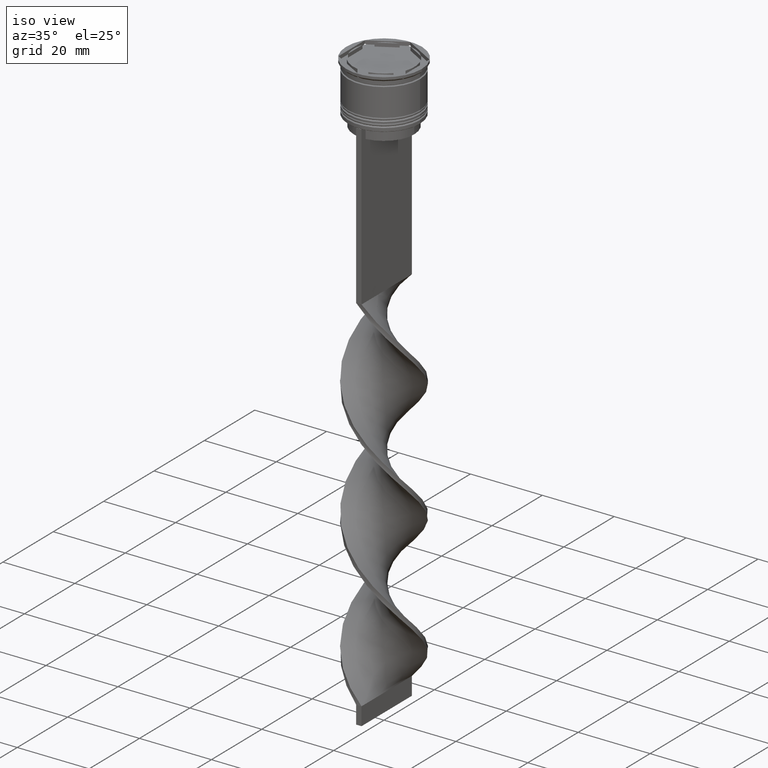
[diagram: clean part render]
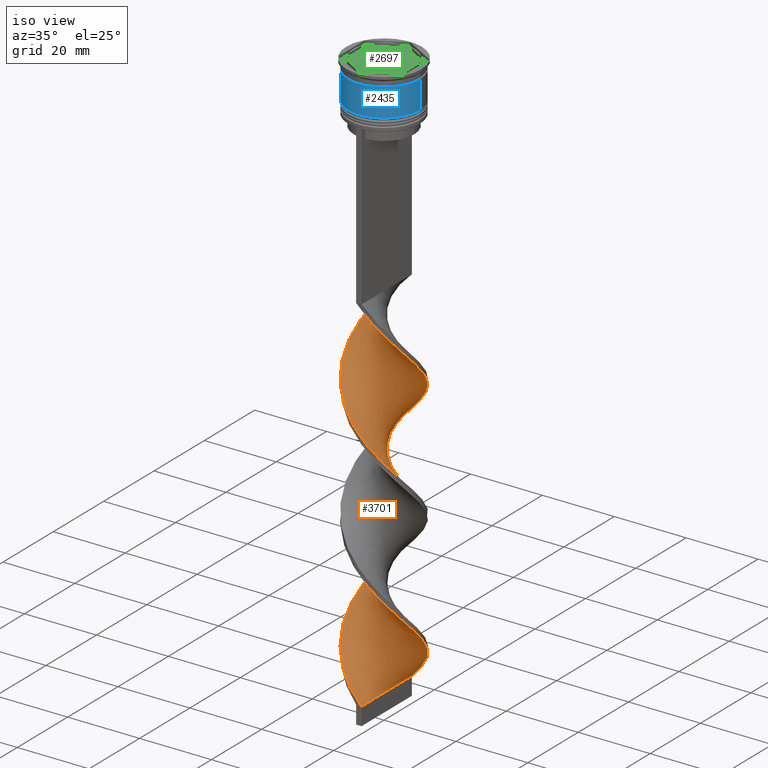
[diagram: same view with three faces highlighted in distinct colors, each labeled with its STEP entity id]
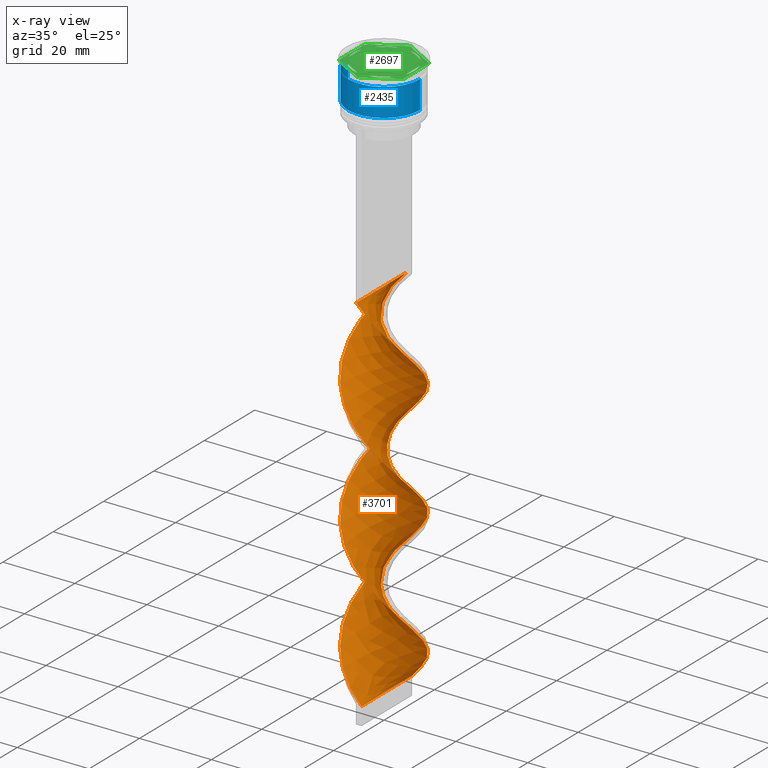
[diagram: x-ray of the same camera — body ghosted, the three highlighted faces saturated]
A machine part, iso view with three faces highlighted in distinct colors.
The next image is the same camera in x-ray (body ghosted, the three faces saturated) — at least one of them is partly hidden behind the body in this view.
Their STEP definitions:

[orange] entity #3701 — the highlighted face is a freeform B-spline surface patch.
#5 = CARTESIAN_POINT ( 'NONE',  ( -0.7499999999999997780, 9.999999999999998224, -58.00000000000000000 ) ) ;
#10 = CARTESIAN_POINT ( 'NONE',  ( 2.389970062597715383, -9.795991374453498324, -61.36666666666666003 ) ) ;
#12 = CARTESIAN_POINT ( 'NONE',  ( 1.345506207627244599, 9.937409775451374827, -123.0888888888888886 ) ) ;
#29 = CARTESIAN_POINT ( 'NONE',  ( 3.382207337526053514, -9.440507058732864110, -62.48888888888889426 ) ) ;
#31 = CARTESIAN_POINT ( 'NONE',  ( -7.288592354231107073, 6.967770475720652890, -133.1888888888889255 ) ) ;
#38 = CARTESIAN_POINT ( 'NONE',  ( -2.389970062597714495, -9.795991374453491218, -155.6333333333333542 ) ) ;
#45 = B_SPLINE_CURVE_WITH_KNOTS ( 'NONE', 3,
 ( #2873, #435, #1615, #1364 ),
 .UNSPECIFIED., .F., .F.,
 ( 4, 4 ),
 ( 0.000000000000000000, 1.000000000000000000 ),
 .UNSPECIFIED. ) ;
#47 = CARTESIAN_POINT ( 'NONE',  ( -4.752525523989951317, 8.830402094119156331, -62.48888888888889426 ) ) ;
#54 = CARTESIAN_POINT ( 'NONE',  ( -0.3010423526567673758, -10.07882817644925666, -157.8777777777777942 ) ) ;
#66 = CARTESIAN_POINT ( 'NONE',  ( 3.382207337526053958, -9.440507058732864110, -62.48888888888889426 ) ) ;
#70 = CARTESIAN_POINT ( 'NONE',  ( 1.801042352656767820, 9.921171823550748670, -157.8777777777777942 ) ) ;
#76 = CARTESIAN_POINT ( 'NONE',  ( -7.288592354231117731, -6.967770475720650225, -117.4777777777777885 ) ) ;
#96 = CARTESIAN_POINT ( 'NONE',  ( -6.167734941832652140, 7.976995022925438050, -99.52222222222223991 ) ) ;
#111 = CARTESIAN_POINT ( 'NONE',  ( 1.345506207627239936, -9.937409775451381932, -127.5777777777777828 ) ) ;
#133 = CARTESIAN_POINT ( 'NONE',  ( -9.278802417170329164, 3.803462330970842409, -105.1333333333333400 ) ) ;
#163 = CARTESIAN_POINT ( 'NONE',  ( 7.288592354231104409, -6.967770475720653778, -99.52222222222223991 ) ) ;
#169 = CARTESIAN_POINT ( 'NONE',  ( -9.492508010833716980, -3.400837481082918945, -112.9888888888888943 ) ) ;
#180 = CARTESIAN_POINT ( 'NONE',  ( -2.812727608727946471, 9.625542239224735397, -127.5777777777777828 ) ) ;
#182 = EDGE_CURVE ( 'NONE', #1169, #3101, #45, .T. ) ;
#189 = CARTESIAN_POINT ( 'NONE',  ( 9.035254037844392627, 4.350480947161671885, -80.44444444444445708 ) ) ;
#199 = CARTESIAN_POINT ( 'NONE',  ( 2.812727608727952244, 9.625542239224740726, -156.7555555555555600 ) ) ;
#207 = CARTESIAN_POINT ( 'NONE',  ( -5.680638183180772849, 8.330891533339585209, -130.9444444444444571 ) ) ;
#215 = CARTESIAN_POINT ( 'NONE',  ( -9.866822606231997028, 1.791176054202747503, -107.3777777777777942 ) ) ;
#223 = CARTESIAN_POINT ( 'NONE',  ( 9.992147806631782814, -1.352917631973300949, -106.2555555555555742 ) ) ;
#236 = CARTESIAN_POINT ( 'NONE',  ( -10.02361530113347854, -0.2993932111503255222, -109.6222222222222342 ) ) ;
#244 = CARTESIAN_POINT ( 'NONE',  ( 9.492508010833715204, 3.400837481082922498, -146.6555555555555657 ) ) ;
#251 = CARTESIAN_POINT ( 'NONE',  ( 10.02361530113347321, -0.2993932111503375681, -107.3777777777777942 ) ) ;
#260 = CARTESIAN_POINT ( 'NONE',  ( 6.929600300004801205, -7.248664682696631445, -134.3111111111111313 ) ) ;
#269 = CARTESIAN_POINT ( 'NONE',  ( 8.578000064855068274, 5.300124413240423493, -148.8999999999999488 ) ) ;
#280 = CARTESIAN_POINT ( 'NONE',  ( 2.389970062597715827, 9.795991374453491218, -121.9666666666666544 ) ) ;
#289 = CARTESIAN_POINT ( 'NONE',  ( 7.691465658176951159, -6.520334342467825728, -68.10000000000000853 ) ) ;
#291 = CARTESIAN_POINT ( 'NONE',  ( -9.278802417170323835, -3.803462330970837968, -78.20000000000000284 ) ) ;
#308 = CARTESIAN_POINT ( 'NONE',  ( 0.7499999999999985567, -9.999999999999998224, -159.0000000000000000 ) ) ;
#309 = CARTESIAN_POINT ( 'NONE',  ( 1.345506207627239936, -9.937409775451381932, -60.24444444444444713 ) ) ;
#347 = CARTESIAN_POINT ( 'NONE',  ( 5.680638183180779954, 8.330891533339588761, -153.3888888888889142 ) ) ;
#355 = CARTESIAN_POINT ( 'NONE',  ( -10.05508279563516005, -0.7541312096726364711, -142.1666666666666856 ) ) ;
#361 =( BOUNDED_SURFACE ( )  B_SPLINE_SURFACE ( 1, 2, ( 
 ( #1581, #984, #3378, #1281, #66, #2489, #1877, #671, #3076, #386, #3812, #1696, #2345, #1098, #2286, #2883, #2321, #2900, #1680, #2680, #189, #3513, #802, #3535, #542, #1399, #479, #2651, #3853, #2006, #2608, #1139, #2049, #497, #2943, #1115, #3218, #2305, #519, #1721, #3881, #2927, #1083, #1377, #215, #1463, #236, #826, #1420, #169, #2588, #2627, #3829, #864, #1161, #3495, #3788, #2032, #3558, #785, #3240, #1740, #848, #1440, #3257, #557, #1758, #2961, #260, #2366, #3575, #3177, #1986, #3197, #585, #2969, #2908, #3580, #1149, #244, #2615, #269, #1470, #547, #1105, #1406, #1788, #871, #199, #2636, #2661 ),
 ( #527, #2687, #2039, #3817, #2372, #3541, #3286, #2992, #2328, #792, #1427, #563, #1447, #3885, #2932, #1166, #2949, #2071, #291, #1490, #503, #1765, #2310, #3520, #2352, #2292, #808, #834, #2705, #1702, #1746, #3202, #2053, #3562, #3904, #3835, #3502, #3247, #1993, #2014, #3225, #852, #1727, #223, #3861, #1121, #3263, #1268, #893, #1553, #3346, #3369, #1852, #2771, #2452, #934, #914, #3054, #12, #376, #1185, #3068, #1883, #2116, #2787, #2478, #395, #31, #2392, #3603, #2726, #663, #3084, #3644, #3028, #355, #1871, #3665, #1246, #2098, #954, #607, #1229, #680, #3389, #1570, #1806, #3688, #2161, #54, #1510 ) ),
 .UNSPECIFIED., .F., .F., .F. ) 
 B_SPLINE_SURFACE_WITH_KNOTS ( ( 2, 2 ),
 ( 3, 2, 2, 2, 2, 2, 2, 2, 2, 2, 2, 2, 2, 2, 2, 2, 2, 2, 2, 2, 2, 2, 2, 2, 2, 2, 2, 2, 2, 2, 2, 2, 2, 2, 2, 2, 2, 2, 2, 2, 2, 2, 2, 2, 2, 3 ),
 ( 0.000000000000000000, 1.000000000000000000 ),
 ( 0.000000000000000000, 0.01666666666666666644, 0.03333333333333333287, 0.05000000000000000278, 0.06666666666666666574, 0.08333333333333332871, 0.1000000000000000056, 0.1166666666666666685, 0.1333333333333333315, 0.1499999999999999944, 0.1666666666666666574, 0.1833333333333333204, 0.2000000000000000111, 0.2166666666666666741, 0.2333333333333333370, 0.2500000000000000000, 0.2666666666666666630, 0.2833333333333333259, 0.2999999999999999889, 0.3166666666666666519, 0.3333333333333333148, 0.3499999999999999778, 0.3666666666666666408, 0.3833333333333333592, 0.4000000000000000222, 0.4166666666666666852, 0.4333333333333333481, 0.4500000000000000111, 0.4666666666666666741, 0.4833333333333333370, 0.5000000000000000000, 0.5166666666666667185, 0.5333333333333333259, 0.5500000000000000444, 0.5666666666666666519, 0.5833333333333333703, 0.5999999999999999778, 0.6166666666666666963, 0.6333333333333333037, 0.6500000000000000222, 0.6666666666666666297, 0.6833333333333333481, 0.6999999999999999556, 0.7166666666666666741, 0.7333333333333332815, 0.7500000000000000000 ),
 .UNSPECIFIED. ) 
 GEOMETRIC_REPRESENTATION_ITEM ( )  RATIONAL_B_SPLINE_SURFACE ( (
 ( 1.000000000000000000, 0.9945218953682732899, 1.000000000000000000, 0.9945218953682732899, 1.000000000000000000, 0.9945218953682732899, 1.000000000000000000, 0.9945218953682732899, 1.000000000000000000, 0.9945218953682732899, 1.000000000000000000, 0.9945218953682732899, 1.000000000000000000, 0.9945218953682732899, 1.000000000000000000, 0.9945218953682732899, 1.000000000000000000, 0.9945218953682732899, 1.000000000000000000, 0.9945218953682732899, 1.000000000000000000, 0.9945218953682732899, 1.000000000000000000, 0.9945218953682732899, 1.000000000000000000, 0.9945218953682732899, 1.000000000000000000, 0.9945218953682732899, 1.000000000000000000, 0.9945218953682732899, 1.000000000000000000, 0.9945218953682732899, 1.000000000000000000, 0.9945218953682732899, 1.000000000000000000, 0.9945218953682732899, 1.000000000000000000, 0.9945218953682732899, 1.000000000000000000, 0.9945218953682732899, 1.000000000000000000, 0.9945218953682732899, 1.000000000000000000, 0.9945218953682732899, 1.000000000000000000, 0.9945218953682732899, 1.000000000000000000, 0.9945218953682732899, 1.000000000000000000, 0.9945218953682732899, 1.000000000000000000, 0.9945218953682732899, 1.000000000000000000, 0.9945218953682732899, 1.000000000000000000, 0.9945218953682732899, 1.000000000000000000, 0.9945218953682732899, 1.000000000000000000, 0.9945218953682732899, 1.000000000000000000, 0.9945218953682732899, 1.000000000000000000, 0.9945218953682732899, 1.000000000000000000, 0.9945218953682732899, 1.000000000000000000, 0.9945218953682732899, 1.000000000000000000, 0.9945218953682732899, 1.000000000000000000, 0.9945218953682732899, 1.000000000000000000, 0.9945218953682732899, 1.000000000000000000, 0.9945218953682732899, 1.000000000000000000, 0.9945218953682732899, 1.000000000000000000, 0.9945218953682732899, 1.000000000000000000, 0.9945218953682732899, 1.000000000000000000, 0.9945218953682732899, 1.000000000000000000, 0.9945218953682732899, 1.000000000000000000, 0.9945218953682732899, 1.000000000000000000, 0.9945218953682732899, 1.000000000000000000),
 ( 1.000000000000000000, 0.9945218953682732899, 1.000000000000000000, 0.9945218953682732899, 1.000000000000000000, 0.9945218953682732899, 1.000000000000000000, 0.9945218953682732899, 1.000000000000000000, 0.9945218953682732899, 1.000000000000000000, 0.9945218953682732899, 1.000000000000000000, 0.9945218953682732899, 1.000000000000000000, 0.9945218953682732899, 1.000000000000000000, 0.9945218953682732899, 1.000000000000000000, 0.9945218953682732899, 1.000000000000000000, 0.9945218953682732899, 1.000000000000000000, 0.9945218953682732899, 1.000000000000000000, 0.9945218953682732899, 1.000000000000000000, 0.9945218953682732899, 1.000000000000000000, 0.9945218953682732899, 1.000000000000000000, 0.9945218953682732899, 1.000000000000000000, 0.9945218953682732899, 1.000000000000000000, 0.9945218953682732899, 1.000000000000000000, 0.9945218953682732899, 1.000000000000000000, 0.9945218953682732899, 1.000000000000000000, 0.9945218953682732899, 1.000000000000000000, 0.9945218953682732899, 1.000000000000000000, 0.9945218953682732899, 1.000000000000000000, 0.9945218953682732899, 1.000000000000000000, 0.9945218953682732899, 1.000000000000000000, 0.9945218953682732899, 1.000000000000000000, 0.9945218953682732899, 1.000000000000000000, 0.9945218953682732899, 1.000000000000000000, 0.9945218953682732899, 1.000000000000000000, 0.9945218953682732899, 1.000000000000000000, 0.9945218953682732899, 1.000000000000000000, 0.9945218953682732899, 1.000000000000000000, 0.9945218953682732899, 1.000000000000000000, 0.9945218953682732899, 1.000000000000000000, 0.9945218953682732899, 1.000000000000000000, 0.9945218953682732899, 1.000000000000000000, 0.9945218953682732899, 1.000000000000000000, 0.9945218953682732899, 1.000000000000000000, 0.9945218953682732899, 1.000000000000000000, 0.9945218953682732899, 1.000000000000000000, 0.9945218953682732899, 1.000000000000000000, 0.9945218953682732899, 1.000000000000000000, 0.9945218953682732899, 1.000000000000000000, 0.9945218953682732899, 1.000000000000000000, 0.9945218953682732899, 1.000000000000000000) ) ) 
 REPRESENTATION_ITEM ( '' )  SURFACE ( )  );
#372 = CARTESIAN_POINT ( 'NONE',  ( -0.7499999999999998890, -10.00000000000000533, -58.00000000000000000 ) ) ;
#376 = CARTESIAN_POINT ( 'NONE',  ( 0.3010423526567729824, 10.07882817644925666, -124.2111111111111370 ) ) ;
#386 = CARTESIAN_POINT ( 'NONE',  ( 7.691465658176951159, -6.520334342467824840, -68.10000000000002274 ) ) ;
#387 = CARTESIAN_POINT ( 'NONE',  ( -5.680638183180772849, 8.330891533339585209, -63.61111111111112137 ) ) ;
#392 = CARTESIAN_POINT ( 'NONE',  ( 10.02361530113347854, 0.2993932111503289084, -143.2888888888889198 ) ) ;
#395 = CARTESIAN_POINT ( 'NONE',  ( -6.484615268705940849, 7.649331004530118605, -132.0666666666666629 ) ) ;
#415 = CARTESIAN_POINT ( 'NONE',  ( 9.492508010833715204, 3.400837481082922498, -146.6555555555555657 ) ) ;
#426 = CARTESIAN_POINT ( 'NONE',  ( -6.929600300004799429, -7.248664682696624340, -82.68888888888889710 ) ) ;
#431 = CARTESIAN_POINT ( 'NONE',  ( -8.879042417511829655, 4.778703763208845601, -104.0111111111111057 ) ) ;
#435 = CARTESIAN_POINT ( 'NONE',  ( 0.7500000000000002220, 3.333333333333337478, -159.0000000000000000 ) ) ;
#442 = CARTESIAN_POINT ( 'NONE',  ( -8.285254037844385522, -5.649519052838325450, -80.44444444444445708 ) ) ;
#447 = CARTESIAN_POINT ( 'NONE',  ( 9.278802417170329164, -3.803462330970841521, -138.8000000000000114 ) ) ;
#479 = CARTESIAN_POINT ( 'NONE',  ( 4.752525523989956646, 8.830402094119161660, -87.17777777777779136 ) ) ;
#491 = CARTESIAN_POINT ( 'NONE',  ( -4.752525523989951317, 8.830402094119156331, -129.8222222222222229 ) ) ;
#497 = CARTESIAN_POINT ( 'NONE',  ( -2.389970062597714495, 9.795991374453500100, -95.03333333333331723 ) ) ;
#503 = CARTESIAN_POINT ( 'NONE',  ( -8.285254037844385522, -5.649519052838325450, -80.44444444444445708 ) ) ;
#519 = CARTESIAN_POINT ( 'NONE',  ( -6.929600300004800317, 7.248664682696634110, -100.6444444444444599 ) ) ;
#527 = CARTESIAN_POINT ( 'NONE',  ( -0.7499999999999997780, 9.999999999999998224, -58.00000000000000000 ) ) ;
#534 = CARTESIAN_POINT ( 'NONE',  ( 10.05508279563516005, 0.7541312096726352499, -108.5000000000000000 ) ) ;
#542 = CARTESIAN_POINT ( 'NONE',  ( 6.484615268705946178, 7.649331004530122158, -84.93333333333333712 ) ) ;
#547 = CARTESIAN_POINT ( 'NONE',  ( 7.288592354231113291, 6.967770475720654666, -151.1444444444444457 ) ) ;
#556 = EDGE_CURVE ( 'NONE', #2036, #1169, #2548, .T. ) ;
#557 = CARTESIAN_POINT ( 'NONE',  ( 4.374444612454390757, -9.085022743012229895, -130.9444444444444287 ) ) ;
#563 = CARTESIAN_POINT ( 'NONE',  ( -9.492508010833708099, 3.400837481082922498, -70.34444444444443434 ) ) ;
#585 = CARTESIAN_POINT ( 'NONE',  ( 9.866822606231998805, -1.791176054202741952, -141.0444444444444514 ) ) ;
#599 = CARTESIAN_POINT ( 'NONE',  ( 6.484615268705946178, 7.649331004530122158, -152.2666666666666799 ) ) ;
#604 = CARTESIAN_POINT ( 'NONE',  ( 9.035254037844392627, 4.350480947161671885, -80.44444444444445708 ) ) ;
#607 = CARTESIAN_POINT ( 'NONE',  ( -7.691465658176945830, -6.520334342467819511, -148.8999999999999488 ) ) ;
#630 = CARTESIAN_POINT ( 'NONE',  ( -9.278802417170323835, -3.803462330970837968, -145.5333333333333599 ) ) ;
#663 = CARTESIAN_POINT ( 'NONE',  ( -9.492508010833708099, 3.400837481082922498, -137.6777777777777487 ) ) ;
#671 = CARTESIAN_POINT ( 'NONE',  ( 6.167734941832653028, -7.976995022925438050, -65.85555555555555429 ) ) ;
#677 = EDGE_CURVE ( 'NONE', #903, #3101, #1028, .T. ) ;
#678 = CARTESIAN_POINT ( 'NONE',  ( -9.492508010833716980, -3.400837481082918501, -112.9888888888888943 ) ) ;
#680 = CARTESIAN_POINT ( 'NONE',  ( -6.167734941832652140, -7.976995022925429168, -151.1444444444444457 ) ) ;
#690 = CARTESIAN_POINT ( 'NONE',  ( 2.812727608727944251, -9.625542239224735397, -93.91111111111111143 ) ) ;
#695 = CARTESIAN_POINT ( 'NONE',  ( 10.05508279563516716, -0.7541312096726379144, -142.1666666666666856 ) ) ;
#713 = CARTESIAN_POINT ( 'NONE',  ( -3.824412864799134226, -9.329912654898734559, -121.9666666666666544 ) ) ;
#729 = CARTESIAN_POINT ( 'NONE',  ( -8.578000064855068274, -5.300124413240421717, -115.2333333333333343 ) ) ;
#757 = CARTESIAN_POINT ( 'NONE',  ( 9.035254037844383745, -4.350480947161674550, -102.8888888888888857 ) ) ;
#785 = CARTESIAN_POINT ( 'NONE',  ( -1.801042352656773371, -9.921171823550746893, -124.2111111111111370 ) ) ;
#792 = CARTESIAN_POINT ( 'NONE',  ( -8.578000064855064721, 5.300124413240420829, -68.10000000000002274 ) ) ;
#802 = CARTESIAN_POINT ( 'NONE',  ( 7.933296209543092559, 6.133947444480536859, -82.68888888888889710 ) ) ;
#808 = CARTESIAN_POINT ( 'NONE',  ( -3.382207337526053070, -9.440507058732857004, -87.17777777777779136 ) ) ;
#826 = CARTESIAN_POINT ( 'NONE',  ( -9.992147806631791696, -1.352917631973290291, -110.7444444444444542 ) ) ;
#834 = CARTESIAN_POINT ( 'NONE',  ( -2.389970062597714495, -9.795991374453491218, -88.29999999999998295 ) ) ;
#848 = CARTESIAN_POINT ( 'NONE',  ( 1.345506207627240158, -9.937409775451381932, -127.5777777777777828 ) ) ;
#852 = CARTESIAN_POINT ( 'NONE',  ( 9.492508010833706322, -3.400837481082927827, -104.0111111111111200 ) ) ;
#864 = CARTESIAN_POINT ( 'NONE',  ( -7.288592354231117731, -6.967770475720651113, -117.4777777777777885 ) ) ;
#871 = CARTESIAN_POINT ( 'NONE',  ( 3.824412864799132450, 9.329912654898736335, -155.6333333333333258 ) ) ;
#891 = CARTESIAN_POINT ( 'NONE',  ( 9.742327908732752562, 2.376877556528110169, -78.20000000000000284 ) ) ;
#893 = CARTESIAN_POINT ( 'NONE',  ( 9.278802417170323835, 3.803462330970836636, -111.8666666666666742 ) ) ;
#903 = VERTEX_POINT ( 'NONE', #2766 ) ;
#908 = CARTESIAN_POINT ( 'NONE',  ( -10.05508279563516005, -0.7541312096726364711, -74.83333333333332860 ) ) ;
#912 = CARTESIAN_POINT ( 'NONE',  ( 0.3010423526567652663, -10.07882817644926376, -59.12222222222222712 ) ) ;
#914 = CARTESIAN_POINT ( 'NONE',  ( 3.382207337526058399, 9.440507058732855228, -120.8444444444444485 ) ) ;
#917 = ORIENTED_EDGE ( 'NONE', *, *, #182, .F. ) ;
#921 = CARTESIAN_POINT ( 'NONE',  ( -3.382207337526053070, -9.440507058732857004, -154.5111111111111200 ) ) ;
#928 = CARTESIAN_POINT ( 'NONE',  ( -8.578000064855064721, 5.300124413240420829, -68.10000000000000853 ) ) ;
#934 = CARTESIAN_POINT ( 'NONE',  ( 4.374444612454391645, 9.085022743012221014, -119.7222222222222143 ) ) ;
#946 = CARTESIAN_POINT ( 'NONE',  ( 7.288592354231114179, 6.967770475720654666, -151.1444444444444457 ) ) ;
#954 = CARTESIAN_POINT ( 'NONE',  ( -8.285254037844385522, -5.649519052838325450, -147.7777777777777715 ) ) ;
#973 = CARTESIAN_POINT ( 'NONE',  ( -9.035254037844394404, -4.350480947161666556, -114.1111111111111285 ) ) ;
#984 = CARTESIAN_POINT ( 'NONE',  ( 0.3010423526567653774, -10.07882817644926376, -59.12222222222222712 ) ) ;
#989 = CARTESIAN_POINT ( 'NONE',  ( 1.801042352656767820, 9.921171823550748670, -90.54444444444445139 ) ) ;
#998 = CARTESIAN_POINT ( 'NONE',  ( -8.879042417511827878, -4.778703763208834943, -79.32222222222222285 ) ) ;
#1001 = DIRECTION ( 'NONE',  ( 0.000000000000000000, 1.000000000000000000, 0.000000000000000000 ) ) ;
#1005 = CARTESIAN_POINT ( 'NONE',  ( -10.05508279563516716, 0.7541312096726390246, -108.5000000000000000 ) ) ;
#1028 =( BOUNDED_CURVE ( )  B_SPLINE_CURVE ( 2, ( #5, #3639, #3321, #2088, #47, #387, #3302, #2468, #3680, #928, #2128, #1503, #2490, #2717, #2407, #908, #3764, #2508, #2231, #998, #442, #1338, #426, #3172, #3120, #3418, #1896, #1620, #1966, #2257, #2549, #1919, #690, #2192, #3750, #2245, #1371, #163, #2831, #2526, #757, #3491, #2022, #1712, #251, #534, #2644, #3844, #1131, #2299, #2337, #2672, #3779, #2916, #3874, #1156, #2581, #280, #2358, #3806, #1076, #2279, #180, #3191, #491, #207, #1191, #2400, #2169, #1252, #2080, #1812, #1836, #3375, #1518, #1478, #1541, #2777, #630, #2143, #3073, #1173, #2378, #3586, #3932, #2078, #921, #38, #1834, #2998, #2122 ),
 .UNSPECIFIED., .F., .T. ) 
 B_SPLINE_CURVE_WITH_KNOTS ( ( 3, 2, 2, 2, 2, 2, 2, 2, 2, 2, 2, 2, 2, 2, 2, 2, 2, 2, 2, 2, 2, 2, 2, 2, 2, 2, 2, 2, 2, 2, 2, 2, 2, 2, 2, 2, 2, 2, 2, 2, 2, 2, 2, 2, 2, 3 ),
 ( 0.000000000000000000, 0.01666666666666666644, 0.03333333333333333287, 0.05000000000000000971, 0.06666666666666666574, 0.08333333333333332871, 0.1000000000000000194, 0.1166666666666666546, 0.1333333333333333315, 0.1499999999999999944, 0.1666666666666666574, 0.1833333333333333204, 0.2000000000000000389, 0.2166666666666666741, 0.2333333333333333093, 0.2500000000000000000, 0.2666666666666666630, 0.2833333333333333259, 0.2999999999999999889, 0.3166666666666666519, 0.3333333333333333148, 0.3499999999999999223, 0.3666666666666666408, 0.3833333333333333592, 0.4000000000000000777, 0.4166666666666666852, 0.4333333333333333481, 0.4500000000000000111, 0.4666666666666666186, 0.4833333333333333370, 0.5000000000000000000, 0.5166666666666667185, 0.5333333333333333259, 0.5500000000000000444, 0.5666666666666666519, 0.5833333333333333703, 0.5999999999999999778, 0.6166666666666666963, 0.6333333333333333037, 0.6500000000000000222, 0.6666666666666666297, 0.6833333333333332371, 0.6999999999999998446, 0.7166666666666666741, 0.7333333333333332815, 0.7500000000000000000 ),
 .UNSPECIFIED. ) 
 CURVE ( )  GEOMETRIC_REPRESENTATION_ITEM ( )  RATIONAL_B_SPLINE_CURVE ( ( 1.000000000000000000, 0.9945218953682732899, 1.000000000000000000, 0.9945218953682732899, 1.000000000000000000, 0.9945218953682732899, 1.000000000000000000, 0.9945218953682732899, 1.000000000000000000, 0.9945218953682732899, 1.000000000000000000, 0.9945218953682732899, 1.000000000000000000, 0.9945218953682732899, 1.000000000000000000, 0.9945218953682732899, 1.000000000000000000, 0.9945218953682732899, 1.000000000000000000, 0.9945218953682732899, 1.000000000000000000, 0.9945218953682732899, 1.000000000000000000, 0.9945218953682732899, 1.000000000000000000, 0.9945218953682732899, 1.000000000000000000, 0.9945218953682732899, 1.000000000000000000, 0.9945218953682732899, 1.000000000000000000, 0.9945218953682732899, 1.000000000000000000, 0.9945218953682732899, 1.000000000000000000, 0.9945218953682732899, 1.000000000000000000, 0.9945218953682732899, 1.000000000000000000, 0.9945218953682732899, 1.000000000000000000, 0.9945218953682732899, 1.000000000000000000, 0.9945218953682732899, 1.000000000000000000, 0.9945218953682732899, 1.000000000000000000, 0.9945218953682732899, 1.000000000000000000, 0.9945218953682732899, 1.000000000000000000, 0.9945218953682732899, 1.000000000000000000, 0.9945218953682732899, 1.000000000000000000, 0.9945218953682732899, 1.000000000000000000, 0.9945218953682732899, 1.000000000000000000, 0.9945218953682732899, 1.000000000000000000, 0.9945218953682732899, 1.000000000000000000, 0.9945218953682732899, 1.000000000000000000, 0.9945218953682732899, 1.000000000000000000, 0.9945218953682732899, 1.000000000000000000, 0.9945218953682732899, 1.000000000000000000, 0.9945218953682732899, 1.000000000000000000, 0.9945218953682732899, 1.000000000000000000, 0.9945218953682732899, 1.000000000000000000, 0.9945218953682732899, 1.000000000000000000, 0.9945218953682732899, 1.000000000000000000, 0.9945218953682732899, 1.000000000000000000, 0.9945218953682732899, 1.000000000000000000, 0.9945218953682732899, 1.000000000000000000, 0.9945218953682732899, 1.000000000000000000, 0.9945218953682732899, 1.000000000000000000 ) ) 
 REPRESENTATION_ITEM ( '' )  );
#1029 = CARTESIAN_POINT ( 'NONE',  ( -0.7499999999999998890, -10.00000000000000533, -125.3333333333333570 ) ) ;
#1076 = CARTESIAN_POINT ( 'NONE',  ( -0.7499999999999997780, 9.999999999999998224, -125.3333333333333570 ) ) ;
#1083 = CARTESIAN_POINT ( 'NONE',  ( -9.278802417170329164, 3.803462330970842409, -105.1333333333333400 ) ) ;
#1098 = CARTESIAN_POINT ( 'NONE',  ( 9.678562416828825121, -2.828220898732843658, -72.58888888888890278 ) ) ;
#1105 = CARTESIAN_POINT ( 'NONE',  ( 6.484615268705946178, 7.649331004530122158, -152.2666666666666799 ) ) ;
#1107 = ORIENTED_EDGE ( 'NONE', *, *, #556, .F. ) ;
#1115 = CARTESIAN_POINT ( 'NONE',  ( -4.374444612454388981, 9.085022743012229895, -97.27777777777778567 ) ) ;
#1121 = CARTESIAN_POINT ( 'NONE',  ( 10.05508279563516005, 0.7541312096726353609, -108.5000000000000000 ) ) ;
#1131 = CARTESIAN_POINT ( 'NONE',  ( 9.278802417170323835, 3.803462330970836636, -111.8666666666666742 ) ) ;
#1139 = CARTESIAN_POINT ( 'NONE',  ( -0.3010423526567609920, 10.07882817644926554, -92.78888888888889142 ) ) ;
#1149 = CARTESIAN_POINT ( 'NONE',  ( 9.742327908732752562, 2.376877556528110169, -145.5333333333333599 ) ) ;
#1156 = CARTESIAN_POINT ( 'NONE',  ( 4.374444612454392534, 9.085022743012221014, -119.7222222222222143 ) ) ;
#1161 = CARTESIAN_POINT ( 'NONE',  ( -6.484615268705947067, -7.649331004530122158, -118.6000000000000085 ) ) ;
#1166 = CARTESIAN_POINT ( 'NONE',  ( -10.05508279563516005, -0.7541312096726364711, -74.83333333333334281 ) ) ;
#1169 = VERTEX_POINT ( 'NONE', #3396 ) ;
#1173 = CARTESIAN_POINT ( 'NONE',  ( -7.691465658176945830, -6.520334342467819511, -148.8999999999999773 ) ) ;
#1185 = CARTESIAN_POINT ( 'NONE',  ( -0.7499999999999997780, 9.999999999999998224, -125.3333333333333570 ) ) ;
#1191 = CARTESIAN_POINT ( 'NONE',  ( -6.484615268705940849, 7.649331004530118605, -132.0666666666666629 ) ) ;
#1197 = CARTESIAN_POINT ( 'NONE',  ( 3.824412864799132450, 9.329912654898734559, -155.6333333333333542 ) ) ;
#1205 = CARTESIAN_POINT ( 'NONE',  ( 5.680638183180779954, 8.330891533339588761, -86.05555555555557135 ) ) ;
#1229 = CARTESIAN_POINT ( 'NONE',  ( -6.929600300004799429, -7.248664682696624340, -150.0222222222222115 ) ) ;
#1244 = CARTESIAN_POINT ( 'NONE',  ( 4.374444612454390757, -9.085022743012229895, -63.61111111111112137 ) ) ;
#1246 = CARTESIAN_POINT ( 'NONE',  ( -9.278802417170323835, -3.803462330970837968, -145.5333333333333599 ) ) ;
#1252 = CARTESIAN_POINT ( 'NONE',  ( -8.578000064855064721, 5.300124413240420829, -135.4333333333333371 ) ) ;
#1264 = CARTESIAN_POINT ( 'NONE',  ( 0.7500000000000011102, 10.00000000000000533, -91.66666666666667140 ) ) ;
#1268 = CARTESIAN_POINT ( 'NONE',  ( 9.678562416828823345, 2.828220898732833444, -110.7444444444444542 ) ) ;
#1281 = CARTESIAN_POINT ( 'NONE',  ( 2.389970062597715383, -9.795991374453498324, -61.36666666666666003 ) ) ;
#1289 = CARTESIAN_POINT ( 'NONE',  ( -2.812727608727953577, -9.625542239224740726, -123.0888888888888886 ) ) ;
#1306 = CARTESIAN_POINT ( 'NONE',  ( -3.382207337526049962, 9.440507058732864110, -96.15555555555556566 ) ) ;
#1322 = CARTESIAN_POINT ( 'NONE',  ( 3.382207337526053514, -9.440507058732864110, -129.8222222222222229 ) ) ;
#1338 = CARTESIAN_POINT ( 'NONE',  ( -7.691465658176945830, -6.520334342467819511, -81.56666666666666288 ) ) ;
#1345 = CARTESIAN_POINT ( 'NONE',  ( 9.678562416828826898, -2.828220898732844102, -139.9222222222222172 ) ) ;
#1364 = CARTESIAN_POINT ( 'NONE',  ( 0.7499999999999985567, -9.999999999999998224, -159.0000000000000000 ) ) ;
#1371 = CARTESIAN_POINT ( 'NONE',  ( 6.484615268705939073, -7.649331004530118605, -98.40000000000001990 ) ) ;
#1377 = CARTESIAN_POINT ( 'NONE',  ( -9.678562416828825121, 2.828220898732847211, -106.2555555555555742 ) ) ;
#1393 = ORIENTED_EDGE ( 'NONE', *, *, #677, .T. ) ;
#1399 = CARTESIAN_POINT ( 'NONE',  ( 5.680638183180779954, 8.330891533339588761, -86.05555555555557135 ) ) ;
#1406 = CARTESIAN_POINT ( 'NONE',  ( 5.680638183180779954, 8.330891533339588761, -153.3888888888889142 ) ) ;
#1420 = CARTESIAN_POINT ( 'NONE',  ( -9.742327908732752562, -2.376877556528108837, -111.8666666666666742 ) ) ;
#1427 = CARTESIAN_POINT ( 'NONE',  ( -9.035254037844385522, 4.350480947161671885, -69.22222222222222854 ) ) ;
#1440 = CARTESIAN_POINT ( 'NONE',  ( 2.389970062597715383, -9.795991374453498324, -128.6999999999999886 ) ) ;
#1447 = CARTESIAN_POINT ( 'NONE',  ( -9.742327908732745456, 2.376877556528109725, -71.46666666666668277 ) ) ;
#1463 = CARTESIAN_POINT ( 'NONE',  ( -10.05508279563516716, 0.7541312096726390246, -108.5000000000000000 ) ) ;
#1470 = CARTESIAN_POINT ( 'NONE',  ( 7.933296209543092559, 6.133947444480536859, -150.0222222222222115 ) ) ;
#1478 = CARTESIAN_POINT ( 'NONE',  ( -10.05508279563516005, -0.7541312096726364711, -142.1666666666666856 ) ) ;
#1487 = CARTESIAN_POINT ( 'NONE',  ( 8.285254037844389075, -5.649519052838332556, -69.22222222222222854 ) ) ;
#1490 = CARTESIAN_POINT ( 'NONE',  ( -8.879042417511827878, -4.778703763208835831, -79.32222222222222285 ) ) ;
#1503 = CARTESIAN_POINT ( 'NONE',  ( -9.492508010833709875, 3.400837481082922498, -70.34444444444444855 ) ) ;
#1510 = CARTESIAN_POINT ( 'NONE',  ( 0.7499999999999985567, -9.999999999999998224, -159.0000000000000000 ) ) ;
#1518 = CARTESIAN_POINT ( 'NONE',  ( -10.02361530113347143, 0.2993932111503319060, -141.0444444444444514 ) ) ;
#1541 = CARTESIAN_POINT ( 'NONE',  ( -9.866822606231991699, -1.791176054202737955, -143.2888888888889198 ) ) ;
#1553 = CARTESIAN_POINT ( 'NONE',  ( 8.879042417511829655, 4.778703763208832278, -112.9888888888888943 ) ) ;
#1570 = CARTESIAN_POINT ( 'NONE',  ( -4.374444612454390757, -9.085022743012221014, -153.3888888888889142 ) ) ;
#1581 = CARTESIAN_POINT ( 'NONE',  ( -0.7499999999999997780, -10.00000000000000533, -58.00000000000000000 ) ) ;
#1583 = CARTESIAN_POINT ( 'NONE',  ( 7.933296209543092559, 6.133947444480536859, -150.0222222222222115 ) ) ;
#1590 = CARTESIAN_POINT ( 'NONE',  ( -4.374444612454388981, 9.085022743012231672, -97.27777777777779988 ) ) ;
#1609 = CARTESIAN_POINT ( 'NONE',  ( 9.035254037844392627, 4.350480947161671885, -147.7777777777777715 ) ) ;
#1615 = CARTESIAN_POINT ( 'NONE',  ( 0.7499999999999994449, -3.333333333333330373, -159.0000000000000000 ) ) ;
#1620 = CARTESIAN_POINT ( 'NONE',  ( -2.389970062597714495, -9.795991374453491218, -88.29999999999998295 ) ) ;
#1626 = CARTESIAN_POINT ( 'NONE',  ( -9.678562416828825121, 2.828220898732847655, -106.2555555555555742 ) ) ;
#1642 = CARTESIAN_POINT ( 'NONE',  ( -6.929600300004800317, 7.248664682696634110, -100.6444444444444599 ) ) ;
#1680 = CARTESIAN_POINT ( 'NONE',  ( 9.742327908732752562, 2.376877556528110169, -78.20000000000000284 ) ) ;
#1696 = CARTESIAN_POINT ( 'NONE',  ( 8.879042417511833207, -4.778703763208840272, -70.34444444444443434 ) ) ;
#1701 = VECTOR ( 'NONE', #1001, 1000.000000000000000 ) ;
#1702 = CARTESIAN_POINT ( 'NONE',  ( -0.3010423526567673758, -10.07882817644925666, -90.54444444444445139 ) ) ;
#1712 = CARTESIAN_POINT ( 'NONE',  ( 9.992147806631782814, -1.352917631973301171, -106.2555555555555742 ) ) ;
#1721 = CARTESIAN_POINT ( 'NONE',  ( -7.691465658176949383, 6.520334342467825728, -101.7666666666666515 ) ) ;
#1727 = CARTESIAN_POINT ( 'NONE',  ( 9.742327908732745456, -2.376877556528110169, -105.1333333333333400 ) ) ;
#1740 = CARTESIAN_POINT ( 'NONE',  ( 0.3010423526567653774, -10.07882817644926376, -126.4555555555555628 ) ) ;
#1746 = CARTESIAN_POINT ( 'NONE',  ( 0.7499999999999985567, -9.999999999999998224, -91.66666666666667140 ) ) ;
#1758 = CARTESIAN_POINT ( 'NONE',  ( 5.271089777143523669, -8.531008882968833973, -132.0666666666666629 ) ) ;
#1765 = CARTESIAN_POINT ( 'NONE',  ( -7.691465658176945830, -6.520334342467819511, -81.56666666666664867 ) ) ;
#1786 = CARTESIAN_POINT ( 'NONE',  ( 6.167734941832653917, -7.976995022925438050, -65.85555555555555429 ) ) ;
#1788 = CARTESIAN_POINT ( 'NONE',  ( 4.752525523989956646, 8.830402094119161660, -154.5111111111111200 ) ) ;
#1805 = CARTESIAN_POINT ( 'NONE',  ( 8.578000064855070050, 5.300124413240422605, -81.56666666666666288 ) ) ;
#1806 = CARTESIAN_POINT ( 'NONE',  ( -3.382207337526053070, -9.440507058732857004, -154.5111111111111200 ) ) ;
#1812 = CARTESIAN_POINT ( 'NONE',  ( -9.492508010833709875, 3.400837481082922498, -137.6777777777777487 ) ) ;
#1834 = CARTESIAN_POINT ( 'NONE',  ( -1.345506207627243267, -9.937409775451374827, -156.7555555555555600 ) ) ;
#1836 = CARTESIAN_POINT ( 'NONE',  ( -9.742327908732745456, 2.376877556528109725, -138.8000000000000114 ) ) ;
#1842 = CARTESIAN_POINT ( 'NONE',  ( 2.812727608727952688, 9.625542239224740726, -156.7555555555555600 ) ) ;
#1852 = CARTESIAN_POINT ( 'NONE',  ( 6.929600300004801205, 7.248664682696623451, -116.3555555555555685 ) ) ;
#1871 = CARTESIAN_POINT ( 'NONE',  ( -9.866822606231991699, -1.791176054202737955, -143.2888888888889198 ) ) ;
#1877 = CARTESIAN_POINT ( 'NONE',  ( 5.271089777143523669, -8.531008882968833973, -64.73333333333333428 ) ) ;
#1881 = CARTESIAN_POINT ( 'NONE',  ( 6.167734941832653917, -7.976995022925438050, -133.1888888888889255 ) ) ;
#1883 = CARTESIAN_POINT ( 'NONE',  ( -2.812727608727946471, 9.625542239224735397, -127.5777777777777828 ) ) ;
#1896 = CARTESIAN_POINT ( 'NONE',  ( -3.382207337526053070, -9.440507058732857004, -87.17777777777779136 ) ) ;
#1902 = CARTESIAN_POINT ( 'NONE',  ( 9.992147806631788143, 1.352917631973295620, -144.4111111111111256 ) ) ;
#1919 = CARTESIAN_POINT ( 'NONE',  ( 1.801042352656760270, -9.921171823550743341, -92.78888888888889142 ) ) ;
#1923 = CARTESIAN_POINT ( 'NONE',  ( -10.02361530113347854, -0.2993932111503254112, -109.6222222222222342 ) ) ;
#1939 = CARTESIAN_POINT ( 'NONE',  ( -5.271089777143522781, 8.531008882968833973, -98.40000000000001990 ) ) ;
#1966 = CARTESIAN_POINT ( 'NONE',  ( -1.345506207627243267, -9.937409775451374827, -89.42222222222223138 ) ) ;
#1986 = CARTESIAN_POINT ( 'NONE',  ( 9.278802417170329164, -3.803462330970841521, -138.8000000000000114 ) ) ;
#1993 = CARTESIAN_POINT ( 'NONE',  ( 7.933296209543083677, -6.133947444480537747, -100.6444444444444599 ) ) ;
#2006 = CARTESIAN_POINT ( 'NONE',  ( 1.801042352656767598, 9.921171823550746893, -90.54444444444445139 ) ) ;
#2014 = CARTESIAN_POINT ( 'NONE',  ( 8.578000064855062945, -5.300124413240421717, -101.7666666666666515 ) ) ;
#2022 = CARTESIAN_POINT ( 'NONE',  ( 9.742327908732745456, -2.376877556528110169, -105.1333333333333400 ) ) ;
#2032 = CARTESIAN_POINT ( 'NONE',  ( -3.824412864799134226, -9.329912654898736335, -121.9666666666666544 ) ) ;
#2036 = VERTEX_POINT ( 'NONE', #3553 ) ;
#2039 = CARTESIAN_POINT ( 'NONE',  ( -2.812727608727946471, 9.625542239224735397, -60.24444444444444713 ) ) ;
#2049 = CARTESIAN_POINT ( 'NONE',  ( -1.345506207627237938, 9.937409775451381932, -93.91111111111111143 ) ) ;
#2053 = CARTESIAN_POINT ( 'NONE',  ( 2.812727608727944251, -9.625542239224735397, -93.91111111111111143 ) ) ;
#2071 = CARTESIAN_POINT ( 'NONE',  ( -9.678562416828821569, -2.828220898732839217, -77.07777777777778283 ) ) ;
#2078 = CARTESIAN_POINT ( 'NONE',  ( -4.374444612454390757, -9.085022743012221014, -153.3888888888889142 ) ) ;
#2080 = CARTESIAN_POINT ( 'NONE',  ( -9.035254037844385522, 4.350480947161671885, -136.5555555555555713 ) ) ;
#2088 = CARTESIAN_POINT ( 'NONE',  ( -3.824412864799129785, 9.329912654898727453, -61.36666666666666003 ) ) ;
#2098 = CARTESIAN_POINT ( 'NONE',  ( -8.879042417511827878, -4.778703763208835831, -146.6555555555555657 ) ) ;
#2115 = CARTESIAN_POINT ( 'NONE',  ( 10.05508279563516716, -0.7541312096726379144, -74.83333333333332860 ) ) ;
#2116 = CARTESIAN_POINT ( 'NONE',  ( -3.824412864799129341, 9.329912654898729230, -128.6999999999999886 ) ) ;
#2122 = CARTESIAN_POINT ( 'NONE',  ( 0.7499999999999985567, -9.999999999999998224, -159.0000000000000000 ) ) ;
#2128 = CARTESIAN_POINT ( 'NONE',  ( -9.035254037844385522, 4.350480947161671885, -69.22222222222222854 ) ) ;
#2143 = CARTESIAN_POINT ( 'NONE',  ( -8.879042417511827878, -4.778703763208834943, -146.6555555555555657 ) ) ;
#2149 = CARTESIAN_POINT ( 'NONE',  ( 8.578000064855070050, 5.300124413240422605, -148.8999999999999773 ) ) ;
#2161 = CARTESIAN_POINT ( 'NONE',  ( -1.345506207627243267, -9.937409775451374827, -156.7555555555555600 ) ) ;
#2169 = CARTESIAN_POINT ( 'NONE',  ( -7.933296209543083677, 6.133947444480536859, -134.3111111111111313 ) ) ;
#2179 = CARTESIAN_POINT ( 'NONE',  ( -9.866822606231997028, 1.791176054202747725, -107.3777777777777942 ) ) ;
#2192 = CARTESIAN_POINT ( 'NONE',  ( 3.824412864799128453, -9.329912654898729230, -95.03333333333331723 ) ) ;
#2197 = CARTESIAN_POINT ( 'NONE',  ( -1.345506207627237716, 9.937409775451381932, -93.91111111111111143 ) ) ;
#2215 = CARTESIAN_POINT ( 'NONE',  ( -6.484615268705947067, -7.649331004530122158, -118.6000000000000085 ) ) ;
#2231 = CARTESIAN_POINT ( 'NONE',  ( -9.278802417170323835, -3.803462330970837968, -78.20000000000000284 ) ) ;
#2235 = CARTESIAN_POINT ( 'NONE',  ( -2.389970062597714495, 9.795991374453500100, -95.03333333333331723 ) ) ;
#2245 = CARTESIAN_POINT ( 'NONE',  ( 5.680638183180771073, -8.330891533339586985, -97.27777777777779988 ) ) ;
#2257 = CARTESIAN_POINT ( 'NONE',  ( -0.3010423526567673758, -10.07882817644925666, -90.54444444444445139 ) ) ;
#2279 = CARTESIAN_POINT ( 'NONE',  ( -1.801042352656763823, 9.921171823550741564, -126.4555555555555770 ) ) ;
#2286 = CARTESIAN_POINT ( 'NONE',  ( 9.866822606231998805, -1.791176054202741952, -73.71111111111112280 ) ) ;
#2292 = CARTESIAN_POINT ( 'NONE',  ( -4.374444612454390757, -9.085022743012221014, -86.05555555555557135 ) ) ;
#2299 = CARTESIAN_POINT ( 'NONE',  ( 8.879042417511829655, 4.778703763208831390, -112.9888888888888943 ) ) ;
#2305 = CARTESIAN_POINT ( 'NONE',  ( -6.167734941832652140, 7.976995022925438050, -99.52222222222223991 ) ) ;
#2310 = CARTESIAN_POINT ( 'NONE',  ( -6.929600300004799429, -7.248664682696624340, -82.68888888888889710 ) ) ;
#2313 = ORIENTED_EDGE ( 'NONE', *, *, #3282, .T. ) ;
#2321 = CARTESIAN_POINT ( 'NONE',  ( 10.02361530113347854, 0.2993932111503290194, -75.95555555555554861 ) ) ;
#2328 = CARTESIAN_POINT ( 'NONE',  ( -7.933296209543083677, 6.133947444480536859, -66.97777777777777430 ) ) ;
#2337 = CARTESIAN_POINT ( 'NONE',  ( 8.285254037844389075, 5.649519052838321009, -114.1111111111111285 ) ) ;
#2345 = CARTESIAN_POINT ( 'NONE',  ( 9.278802417170329164, -3.803462330970841521, -71.46666666666668277 ) ) ;
#2352 = CARTESIAN_POINT ( 'NONE',  ( -5.271089777143521005, -8.531008882968826867, -84.93333333333333712 ) ) ;
#2358 = CARTESIAN_POINT ( 'NONE',  ( 1.345506207627244599, 9.937409775451374827, -123.0888888888888886 ) ) ;
#2366 = CARTESIAN_POINT ( 'NONE',  ( 7.691465658176951159, -6.520334342467824840, -135.4333333333333371 ) ) ;
#2372 = CARTESIAN_POINT ( 'NONE',  ( -4.752525523989951317, 8.830402094119156331, -62.48888888888889426 ) ) ;
#2378 = CARTESIAN_POINT ( 'NONE',  ( -6.929600300004799429, -7.248664682696624340, -150.0222222222222115 ) ) ;
#2388 = CARTESIAN_POINT ( 'NONE',  ( 9.678562416828826898, -2.828220898732844102, -72.58888888888890278 ) ) ;
#2392 = CARTESIAN_POINT ( 'NONE',  ( -7.933296209543083677, 6.133947444480536859, -134.3111111111111313 ) ) ;
#2400 = CARTESIAN_POINT ( 'NONE',  ( -7.288592354231107073, 6.967770475720652890, -133.1888888888889255 ) ) ;
#2407 = CARTESIAN_POINT ( 'NONE',  ( -10.02361530113347143, 0.2993932111503319060, -73.71111111111112280 ) ) ;
#2414 = CARTESIAN_POINT ( 'NONE',  ( 4.752525523989956646, 8.830402094119161660, -87.17777777777779136 ) ) ;
#2446 = CARTESIAN_POINT ( 'NONE',  ( 4.752525523989956646, 8.830402094119161660, -154.5111111111111200 ) ) ;
#2449 = CARTESIAN_POINT ( 'NONE',  ( 5.271089777143523669, -8.531008882968833973, -64.73333333333333428 ) ) ;
#2452 = CARTESIAN_POINT ( 'NONE',  ( 5.271089777143521893, 8.531008882968826867, -118.6000000000000085 ) ) ;
#2468 = CARTESIAN_POINT ( 'NONE',  ( -7.288592354231107073, 6.967770475720652890, -65.85555555555555429 ) ) ;
#2475 = CARTESIAN_POINT ( 'NONE',  ( -0.3010423526567608810, 10.07882817644926554, -92.78888888888889142 ) ) ;
#2478 = CARTESIAN_POINT ( 'NONE',  ( -5.680638183180772849, 8.330891533339585209, -130.9444444444444287 ) ) ;
#2489 = CARTESIAN_POINT ( 'NONE',  ( 4.374444612454390757, -9.085022743012229895, -63.61111111111111427 ) ) ;
#2490 = CARTESIAN_POINT ( 'NONE',  ( -9.742327908732745456, 2.376877556528109725, -71.46666666666668277 ) ) ;
#2495 = CARTESIAN_POINT ( 'NONE',  ( 0.3010423526567652663, -10.07882817644926376, -126.4555555555555770 ) ) ;
#2508 = CARTESIAN_POINT ( 'NONE',  ( -9.678562416828821569, -2.828220898732839661, -77.07777777777778283 ) ) ;
#2511 = LINE ( 'NONE', #3714, #1701 ) ;
#2513 = CARTESIAN_POINT ( 'NONE',  ( -9.742327908732752562, -2.376877556528108837, -111.8666666666666742 ) ) ;
#2526 = CARTESIAN_POINT ( 'NONE',  ( 8.578000064855062945, -5.300124413240421717, -101.7666666666666515 ) ) ;
#2534 = CARTESIAN_POINT ( 'NONE',  ( 5.271089777143523669, -8.531008882968833973, -132.0666666666666629 ) ) ;
#2548 =( BOUNDED_CURVE ( )  B_SPLINE_CURVE ( 2, ( #372, #912, #309, #10, #29, #1244, #2449, #1786, #3661, #289, #1487, #3367, #2785, #2388, #2703, #2115, #3901, #3599, #891, #3308, #604, #1805, #3324, #3008, #3922, #1205, #2414, #3385, #2836, #989, #1264, #2475, #2197, #2235, #1306, #1590, #1939, #96, #1642, #2853, #2820, #431, #133, #1626, #2179, #1005, #1923, #2805, #2513, #678, #973, #729, #3426, #76, #2215, #3716, #3124, #713, #1289, #3738, #1029, #2495, #111, #3702, #1322, #3441, #2534, #1881, #3139, #3403, #3686, #3082, #447, #1345, #2554, #695, #392, #1902, #3106, #415, #1609, #2149, #1583, #946, #599, #347, #2446, #1197, #1842, #70, #3360 ),
 .UNSPECIFIED., .F., .T. ) 
 B_SPLINE_CURVE_WITH_KNOTS ( ( 3, 2, 2, 2, 2, 2, 2, 2, 2, 2, 2, 2, 2, 2, 2, 2, 2, 2, 2, 2, 2, 2, 2, 2, 2, 2, 2, 2, 2, 2, 2, 2, 2, 2, 2, 2, 2, 2, 2, 2, 2, 2, 2, 2, 2, 3 ),
 ( 0.000000000000000000, 0.01666666666666666644, 0.03333333333333333287, 0.05000000000000000971, 0.06666666666666666574, 0.08333333333333332871, 0.1000000000000000194, 0.1166666666666666546, 0.1333333333333333315, 0.1499999999999999944, 0.1666666666666666574, 0.1833333333333333204, 0.2000000000000000389, 0.2166666666666666741, 0.2333333333333333093, 0.2500000000000000000, 0.2666666666666666630, 0.2833333333333333259, 0.2999999999999999889, 0.3166666666666666519, 0.3333333333333333148, 0.3499999999999999223, 0.3666666666666666408, 0.3833333333333333592, 0.4000000000000000777, 0.4166666666666666852, 0.4333333333333333481, 0.4500000000000000111, 0.4666666666666666186, 0.4833333333333333370, 0.5000000000000000000, 0.5166666666666667185, 0.5333333333333333259, 0.5500000000000000444, 0.5666666666666666519, 0.5833333333333333703, 0.5999999999999999778, 0.6166666666666666963, 0.6333333333333333037, 0.6500000000000000222, 0.6666666666666666297, 0.6833333333333332371, 0.6999999999999998446, 0.7166666666666666741, 0.7333333333333332815, 0.7500000000000000000 ),
 .UNSPECIFIED. ) 
 CURVE ( )  GEOMETRIC_REPRESENTATION_ITEM ( )  RATIONAL_B_SPLINE_CURVE ( ( 1.000000000000000000, 0.9945218953682732899, 1.000000000000000000, 0.9945218953682732899, 1.000000000000000000, 0.9945218953682732899, 1.000000000000000000, 0.9945218953682732899, 1.000000000000000000, 0.9945218953682732899, 1.000000000000000000, 0.9945218953682732899, 1.000000000000000000, 0.9945218953682732899, 1.000000000000000000, 0.9945218953682732899, 1.000000000000000000, 0.9945218953682732899, 1.000000000000000000, 0.9945218953682732899, 1.000000000000000000, 0.9945218953682732899, 1.000000000000000000, 0.9945218953682732899, 1.000000000000000000, 0.9945218953682732899, 1.000000000000000000, 0.9945218953682732899, 1.000000000000000000, 0.9945218953682732899, 1.000000000000000000, 0.9945218953682732899, 1.000000000000000000, 0.9945218953682732899, 1.000000000000000000, 0.9945218953682732899, 1.000000000000000000, 0.9945218953682732899, 1.000000000000000000, 0.9945218953682732899, 1.000000000000000000, 0.9945218953682732899, 1.000000000000000000, 0.9945218953682732899, 1.000000000000000000, 0.9945218953682732899, 1.000000000000000000, 0.9945218953682732899, 1.000000000000000000, 0.9945218953682732899, 1.000000000000000000, 0.9945218953682732899, 1.000000000000000000, 0.9945218953682732899, 1.000000000000000000, 0.9945218953682732899, 1.000000000000000000, 0.9945218953682732899, 1.000000000000000000, 0.9945218953682732899, 1.000000000000000000, 0.9945218953682732899, 1.000000000000000000, 0.9945218953682732899, 1.000000000000000000, 0.9945218953682732899, 1.000000000000000000, 0.9945218953682732899, 1.000000000000000000, 0.9945218953682732899, 1.000000000000000000, 0.9945218953682732899, 1.000000000000000000, 0.9945218953682732899, 1.000000000000000000, 0.9945218953682732899, 1.000000000000000000, 0.9945218953682732899, 1.000000000000000000, 0.9945218953682732899, 1.000000000000000000, 0.9945218953682732899, 1.000000000000000000, 0.9945218953682732899, 1.000000000000000000, 0.9945218953682732899, 1.000000000000000000, 0.9945218953682732899, 1.000000000000000000, 0.9945218953682732899, 1.000000000000000000 ) ) 
 REPRESENTATION_ITEM ( '' )  );
#2549 = CARTESIAN_POINT ( 'NONE',  ( 0.7499999999999985567, -9.999999999999998224, -91.66666666666667140 ) ) ;
#2554 = CARTESIAN_POINT ( 'NONE',  ( 9.866822606231998805, -1.791176054202742174, -141.0444444444444514 ) ) ;
#2581 = CARTESIAN_POINT ( 'NONE',  ( 3.382207337526058399, 9.440507058732855228, -120.8444444444444485 ) ) ;
#2588 = CARTESIAN_POINT ( 'NONE',  ( -9.035254037844394404, -4.350480947161667444, -114.1111111111111285 ) ) ;
#2608 = CARTESIAN_POINT ( 'NONE',  ( 0.7500000000000009992, 10.00000000000000533, -91.66666666666667140 ) ) ;
#2615 = CARTESIAN_POINT ( 'NONE',  ( 9.035254037844392627, 4.350480947161671885, -147.7777777777777715 ) ) ;
#2627 = CARTESIAN_POINT ( 'NONE',  ( -8.578000064855068274, -5.300124413240422605, -115.2333333333333343 ) ) ;
#2636 = CARTESIAN_POINT ( 'NONE',  ( 1.801042352656767598, 9.921171823550746893, -157.8777777777777942 ) ) ;
#2644 = CARTESIAN_POINT ( 'NONE',  ( 9.866822606231991699, 1.791176054202734624, -109.6222222222222342 ) ) ;
#2651 = CARTESIAN_POINT ( 'NONE',  ( 3.824412864799132450, 9.329912654898736335, -88.29999999999998295 ) ) ;
#2661 = CARTESIAN_POINT ( 'NONE',  ( 0.7500000000000009992, 10.00000000000000533, -159.0000000000000000 ) ) ;
#2672 = CARTESIAN_POINT ( 'NONE',  ( 7.691465658176945830, 6.520334342467818622, -115.2333333333333343 ) ) ;
#2680 = CARTESIAN_POINT ( 'NONE',  ( 9.492508010833715204, 3.400837481082922498, -79.32222222222222285 ) ) ;
#2687 = CARTESIAN_POINT ( 'NONE',  ( -1.801042352656763823, 9.921171823550739788, -59.12222222222222712 ) ) ;
#2703 = CARTESIAN_POINT ( 'NONE',  ( 9.866822606231998805, -1.791176054202742174, -73.71111111111112280 ) ) ;
#2705 = CARTESIAN_POINT ( 'NONE',  ( -1.345506207627243267, -9.937409775451374827, -89.42222222222223138 ) ) ;
#2717 = CARTESIAN_POINT ( 'NONE',  ( -9.992147806631781037, 1.352917631973298285, -72.58888888888890278 ) ) ;
#2726 = CARTESIAN_POINT ( 'NONE',  ( -9.035254037844385522, 4.350480947161671885, -136.5555555555555713 ) ) ;
#2766 = CARTESIAN_POINT ( 'NONE',  ( -0.7499999999999997780, 9.999999999999998224, -58.00000000000000000 ) ) ;
#2771 = CARTESIAN_POINT ( 'NONE',  ( 6.167734941832656581, 7.976995022925425616, -117.4777777777777885 ) ) ;
#2777 = CARTESIAN_POINT ( 'NONE',  ( -9.678562416828821569, -2.828220898732839661, -144.4111111111111256 ) ) ;
#2785 = CARTESIAN_POINT ( 'NONE',  ( 9.278802417170329164, -3.803462330970841521, -71.46666666666668277 ) ) ;
#2787 = CARTESIAN_POINT ( 'NONE',  ( -4.752525523989951317, 8.830402094119156331, -129.8222222222222229 ) ) ;
#2805 = CARTESIAN_POINT ( 'NONE',  ( -9.992147806631789919, -1.352917631973290069, -110.7444444444444542 ) ) ;
#2820 = CARTESIAN_POINT ( 'NONE',  ( -8.285254037844389075, 5.649519052838336108, -102.8888888888888857 ) ) ;
#2831 = CARTESIAN_POINT ( 'NONE',  ( 7.933296209543083677, -6.133947444480537747, -100.6444444444444599 ) ) ;
#2836 = CARTESIAN_POINT ( 'NONE',  ( 2.812727608727952688, 9.625542239224740726, -89.42222222222223138 ) ) ;
#2853 = CARTESIAN_POINT ( 'NONE',  ( -7.691465658176949383, 6.520334342467825728, -101.7666666666666515 ) ) ;
#2873 = CARTESIAN_POINT ( 'NONE',  ( 0.7500000000000011102, 10.00000000000000533, -159.0000000000000000 ) ) ;
#2883 = CARTESIAN_POINT ( 'NONE',  ( 10.05508279563516716, -0.7541312096726378034, -74.83333333333334281 ) ) ;
#2900 = CARTESIAN_POINT ( 'NONE',  ( 9.992147806631789919, 1.352917631973296064, -77.07777777777778283 ) ) ;
#2908 = CARTESIAN_POINT ( 'NONE',  ( 10.02361530113347854, 0.2993932111503290194, -143.2888888888889198 ) ) ;
#2916 = CARTESIAN_POINT ( 'NONE',  ( 6.167734941832657469, 7.976995022925425616, -117.4777777777777885 ) ) ;
#2927 = CARTESIAN_POINT ( 'NONE',  ( -8.879042417511829655, 4.778703763208845601, -104.0111111111111200 ) ) ;
#2932 = CARTESIAN_POINT ( 'NONE',  ( -10.02361530113347143, 0.2993932111503319060, -73.71111111111112280 ) ) ;
#2943 = CARTESIAN_POINT ( 'NONE',  ( -3.382207337526049962, 9.440507058732864110, -96.15555555555556566 ) ) ;
#2949 = CARTESIAN_POINT ( 'NONE',  ( -9.866822606231991699, -1.791176054202737955, -75.95555555555554861 ) ) ;
#2961 = CARTESIAN_POINT ( 'NONE',  ( 6.167734941832653028, -7.976995022925438050, -133.1888888888889255 ) ) ;
#2969 = CARTESIAN_POINT ( 'NONE',  ( 10.05508279563516716, -0.7541312096726378034, -142.1666666666666856 ) ) ;
#2992 = CARTESIAN_POINT ( 'NONE',  ( -7.288592354231107073, 6.967770475720652890, -65.85555555555555429 ) ) ;
#2998 = CARTESIAN_POINT ( 'NONE',  ( -0.3010423526567673758, -10.07882817644925666, -157.8777777777777942 ) ) ;
#3008 = CARTESIAN_POINT ( 'NONE',  ( 7.288592354231114179, 6.967770475720654666, -83.81111111111111711 ) ) ;
#3028 = CARTESIAN_POINT ( 'NONE',  ( -10.02361530113347143, 0.2993932111503319060, -141.0444444444444514 ) ) ;
#3054 = CARTESIAN_POINT ( 'NONE',  ( 2.389970062597715827, 9.795991374453491218, -121.9666666666666544 ) ) ;
#3068 = CARTESIAN_POINT ( 'NONE',  ( -1.801042352656763823, 9.921171823550739788, -126.4555555555555628 ) ) ;
#3073 = CARTESIAN_POINT ( 'NONE',  ( -8.285254037844385522, -5.649519052838325450, -147.7777777777777715 ) ) ;
#3076 = CARTESIAN_POINT ( 'NONE',  ( 6.929600300004801205, -7.248664682696631445, -66.97777777777777430 ) ) ;
#3082 = CARTESIAN_POINT ( 'NONE',  ( 8.879042417511833207, -4.778703763208840272, -137.6777777777777487 ) ) ;
#3084 = CARTESIAN_POINT ( 'NONE',  ( -9.742327908732745456, 2.376877556528109725, -138.8000000000000114 ) ) ;
#3101 = VERTEX_POINT ( 'NONE', #308 ) ;
#3106 = CARTESIAN_POINT ( 'NONE',  ( 9.742327908732752562, 2.376877556528110169, -145.5333333333333599 ) ) ;
#3120 = CARTESIAN_POINT ( 'NONE',  ( -5.271089777143521005, -8.531008882968826867, -84.93333333333333712 ) ) ;
#3124 = CARTESIAN_POINT ( 'NONE',  ( -4.752525523989961087, -8.830402094119159884, -120.8444444444444485 ) ) ;
#3139 = CARTESIAN_POINT ( 'NONE',  ( 6.929600300004801205, -7.248664682696631445, -134.3111111111111313 ) ) ;
#3172 = CARTESIAN_POINT ( 'NONE',  ( -6.167734941832652140, -7.976995022925429168, -83.81111111111111711 ) ) ;
#3177 = CARTESIAN_POINT ( 'NONE',  ( 8.879042417511833207, -4.778703763208840272, -137.6777777777777487 ) ) ;
#3191 = CARTESIAN_POINT ( 'NONE',  ( -3.824412864799129785, 9.329912654898727453, -128.7000000000000171 ) ) ;
#3197 = CARTESIAN_POINT ( 'NONE',  ( 9.678562416828825121, -2.828220898732843658, -139.9222222222222172 ) ) ;
#3202 = CARTESIAN_POINT ( 'NONE',  ( 1.801042352656760270, -9.921171823550741564, -92.78888888888889142 ) ) ;
#3218 = CARTESIAN_POINT ( 'NONE',  ( -5.271089777143522781, 8.531008882968833973, -98.40000000000001990 ) ) ;
#3225 = CARTESIAN_POINT ( 'NONE',  ( 9.035254037844383745, -4.350480947161674550, -102.8888888888888857 ) ) ;
#3240 = CARTESIAN_POINT ( 'NONE',  ( -0.7499999999999997780, -10.00000000000000533, -125.3333333333333570 ) ) ;
#3247 = CARTESIAN_POINT ( 'NONE',  ( 7.288592354231104409, -6.967770475720653778, -99.52222222222223991 ) ) ;
#3257 = CARTESIAN_POINT ( 'NONE',  ( 3.382207337526053958, -9.440507058732864110, -129.8222222222222229 ) ) ;
#3263 = CARTESIAN_POINT ( 'NONE',  ( 9.866822606231991699, 1.791176054202734624, -109.6222222222222342 ) ) ;
#3282 = EDGE_CURVE ( 'NONE', #2036, #903, #2511, .T. ) ;
#3286 = CARTESIAN_POINT ( 'NONE',  ( -6.484615268705940849, 7.649331004530118605, -64.73333333333333428 ) ) ;
#3299 = FACE_OUTER_BOUND ( 'NONE', #3428, .T. ) ;
#3302 = CARTESIAN_POINT ( 'NONE',  ( -6.484615268705940849, 7.649331004530118605, -64.73333333333333428 ) ) ;
#3308 = CARTESIAN_POINT ( 'NONE',  ( 9.492508010833715204, 3.400837481082922498, -79.32222222222222285 ) ) ;
#3321 = CARTESIAN_POINT ( 'NONE',  ( -2.812727608727946471, 9.625542239224735397, -60.24444444444444713 ) ) ;
#3324 = CARTESIAN_POINT ( 'NONE',  ( 7.933296209543092559, 6.133947444480536859, -82.68888888888889710 ) ) ;
#3346 = CARTESIAN_POINT ( 'NONE',  ( 8.285254037844389075, 5.649519052838321009, -114.1111111111111285 ) ) ;
#3360 = CARTESIAN_POINT ( 'NONE',  ( 0.7500000000000011102, 10.00000000000000533, -159.0000000000000000 ) ) ;
#3367 = CARTESIAN_POINT ( 'NONE',  ( 8.879042417511833207, -4.778703763208840272, -70.34444444444444855 ) ) ;
#3369 = CARTESIAN_POINT ( 'NONE',  ( 7.691465658176945830, 6.520334342467818622, -115.2333333333333343 ) ) ;
#3375 = CARTESIAN_POINT ( 'NONE',  ( -9.992147806631781037, 1.352917631973298285, -139.9222222222222172 ) ) ;
#3378 = CARTESIAN_POINT ( 'NONE',  ( 1.345506207627240158, -9.937409775451381932, -60.24444444444444713 ) ) ;
#3385 = CARTESIAN_POINT ( 'NONE',  ( 3.824412864799132450, 9.329912654898734559, -88.29999999999998295 ) ) ;
#3389 = CARTESIAN_POINT ( 'NONE',  ( -5.271089777143521005, -8.531008882968826867, -152.2666666666666799 ) ) ;
#3396 = CARTESIAN_POINT ( 'NONE',  ( 0.7500000000000011102, 10.00000000000000533, -159.0000000000000000 ) ) ;
#3403 = CARTESIAN_POINT ( 'NONE',  ( 7.691465658176951159, -6.520334342467825728, -135.4333333333333371 ) ) ;
#3418 = CARTESIAN_POINT ( 'NONE',  ( -4.374444612454390757, -9.085022743012221014, -86.05555555555557135 ) ) ;
#3426 = CARTESIAN_POINT ( 'NONE',  ( -7.933296209543092559, -6.133947444480535971, -116.3555555555555685 ) ) ;
#3428 = EDGE_LOOP ( 'NONE', ( #2313, #1393, #917, #1107 ) ) ;
#3441 = CARTESIAN_POINT ( 'NONE',  ( 4.374444612454390757, -9.085022743012229895, -130.9444444444444571 ) ) ;
#3491 = CARTESIAN_POINT ( 'NONE',  ( 9.492508010833706322, -3.400837481082927827, -104.0111111111111057 ) ) ;
#3495 = CARTESIAN_POINT ( 'NONE',  ( -5.680638183180781731, -8.330891533339586985, -119.7222222222222143 ) ) ;
#3502 = CARTESIAN_POINT ( 'NONE',  ( 6.484615268705939073, -7.649331004530118605, -98.40000000000001990 ) ) ;
#3513 = CARTESIAN_POINT ( 'NONE',  ( 8.578000064855068274, 5.300124413240423493, -81.56666666666664867 ) ) ;
#3520 = CARTESIAN_POINT ( 'NONE',  ( -6.167734941832652140, -7.976995022925429168, -83.81111111111111711 ) ) ;
#3535 = CARTESIAN_POINT ( 'NONE',  ( 7.288592354231113291, 6.967770475720654666, -83.81111111111111711 ) ) ;
#3541 = CARTESIAN_POINT ( 'NONE',  ( -5.680638183180772849, 8.330891533339585209, -63.61111111111111427 ) ) ;
#3553 = CARTESIAN_POINT ( 'NONE',  ( -0.7499999999999998890, -10.00000000000000533, -58.00000000000000000 ) ) ;
#3558 = CARTESIAN_POINT ( 'NONE',  ( -2.812727608727953577, -9.625542239224740726, -123.0888888888888886 ) ) ;
#3562 = CARTESIAN_POINT ( 'NONE',  ( 3.824412864799128009, -9.329912654898731006, -95.03333333333331723 ) ) ;
#3575 = CARTESIAN_POINT ( 'NONE',  ( 8.285254037844389075, -5.649519052838332556, -136.5555555555555713 ) ) ;
#3580 = CARTESIAN_POINT ( 'NONE',  ( 9.992147806631789919, 1.352917631973296064, -144.4111111111111541 ) ) ;
#3586 = CARTESIAN_POINT ( 'NONE',  ( -6.167734941832652140, -7.976995022925429168, -151.1444444444444457 ) ) ;
#3599 = CARTESIAN_POINT ( 'NONE',  ( 9.992147806631788143, 1.352917631973295620, -77.07777777777778283 ) ) ;
#3603 = CARTESIAN_POINT ( 'NONE',  ( -8.578000064855064721, 5.300124413240420829, -135.4333333333333371 ) ) ;
#3639 = CARTESIAN_POINT ( 'NONE',  ( -1.801042352656763823, 9.921171823550741564, -59.12222222222222712 ) ) ;
#3644 = CARTESIAN_POINT ( 'NONE',  ( -9.992147806631781037, 1.352917631973298285, -139.9222222222222172 ) ) ;
#3661 = CARTESIAN_POINT ( 'NONE',  ( 6.929600300004801205, -7.248664682696631445, -66.97777777777777430 ) ) ;
#3665 = CARTESIAN_POINT ( 'NONE',  ( -9.678562416828821569, -2.828220898732839217, -144.4111111111111541 ) ) ;
#3680 = CARTESIAN_POINT ( 'NONE',  ( -7.933296209543083677, 6.133947444480536859, -66.97777777777777430 ) ) ;
#3686 = CARTESIAN_POINT ( 'NONE',  ( 8.285254037844389075, -5.649519052838332556, -136.5555555555555713 ) ) ;
#3688 = CARTESIAN_POINT ( 'NONE',  ( -2.389970062597714495, -9.795991374453491218, -155.6333333333333258 ) ) ;
#3701 = ADVANCED_FACE ( 'NONE', ( #3299 ), #361, .T. ) ;
#3702 = CARTESIAN_POINT ( 'NONE',  ( 2.389970062597715383, -9.795991374453498324, -128.7000000000000171 ) ) ;
#3714 = CARTESIAN_POINT ( 'NONE',  ( -0.7499999999999997780, -10.00000000000000533, -58.00000000000000000 ) ) ;
#3716 = CARTESIAN_POINT ( 'NONE',  ( -5.680638183180781731, -8.330891533339586985, -119.7222222222222143 ) ) ;
#3738 = CARTESIAN_POINT ( 'NONE',  ( -1.801042352656773593, -9.921171823550748670, -124.2111111111111370 ) ) ;
#3750 = CARTESIAN_POINT ( 'NONE',  ( 4.752525523989947764, -8.830402094119159884, -96.15555555555556566 ) ) ;
#3764 = CARTESIAN_POINT ( 'NONE',  ( -9.866822606231991699, -1.791176054202737955, -75.95555555555554861 ) ) ;
#3779 = CARTESIAN_POINT ( 'NONE',  ( 6.929600300004801205, 7.248664682696623451, -116.3555555555555685 ) ) ;
#3788 = CARTESIAN_POINT ( 'NONE',  ( -4.752525523989961087, -8.830402094119159884, -120.8444444444444485 ) ) ;
#3806 = CARTESIAN_POINT ( 'NONE',  ( 0.3010423526567729824, 10.07882817644925666, -124.2111111111111370 ) ) ;
#3812 = CARTESIAN_POINT ( 'NONE',  ( 8.285254037844389075, -5.649519052838332556, -69.22222222222222854 ) ) ;
#3817 = CARTESIAN_POINT ( 'NONE',  ( -3.824412864799129341, 9.329912654898729230, -61.36666666666666003 ) ) ;
#3829 = CARTESIAN_POINT ( 'NONE',  ( -7.933296209543092559, -6.133947444480535971, -116.3555555555555685 ) ) ;
#3835 = CARTESIAN_POINT ( 'NONE',  ( 5.680638183180771073, -8.330891533339586985, -97.27777777777778567 ) ) ;
#3844 = CARTESIAN_POINT ( 'NONE',  ( 9.678562416828823345, 2.828220898732833444, -110.7444444444444542 ) ) ;
#3853 = CARTESIAN_POINT ( 'NONE',  ( 2.812727608727952244, 9.625542239224740726, -89.42222222222223138 ) ) ;
#3861 = CARTESIAN_POINT ( 'NONE',  ( 10.02361530113347321, -0.2993932111503375681, -107.3777777777777942 ) ) ;
#3874 = CARTESIAN_POINT ( 'NONE',  ( 5.271089777143521893, 8.531008882968826867, -118.6000000000000085 ) ) ;
#3881 = CARTESIAN_POINT ( 'NONE',  ( -8.285254037844389075, 5.649519052838336108, -102.8888888888888857 ) ) ;
#3885 = CARTESIAN_POINT ( 'NONE',  ( -9.992147806631781037, 1.352917631973298285, -72.58888888888890278 ) ) ;
#3901 = CARTESIAN_POINT ( 'NONE',  ( 10.02361530113347854, 0.2993932111503289084, -75.95555555555554861 ) ) ;
#3904 = CARTESIAN_POINT ( 'NONE',  ( 4.752525523989947764, -8.830402094119159884, -96.15555555555556566 ) ) ;
#3922 = CARTESIAN_POINT ( 'NONE',  ( 6.484615268705946178, 7.649331004530122158, -84.93333333333333712 ) ) ;
#3932 = CARTESIAN_POINT ( 'NONE',  ( -5.271089777143521005, -8.531008882968826867, -152.2666666666666799 ) ) ;

[blue] entity #2435 — the highlighted cylindrical surface (partial cylindrical patch) has radius 10 mm, axis along (-0, -0, 1).
#178 = VERTEX_POINT ( 'NONE', #1671 ) ;
#283 = ORIENTED_EDGE ( 'NONE', *, *, #1041, .T. ) ;
#646 = ORIENTED_EDGE ( 'NONE', *, *, #2383, .F. ) ;
#737 = CARTESIAN_POINT ( 'NONE',  ( 0.000000000000000000, 0.000000000000000000, 0.000000000000000000 ) ) ;
#763 = CARTESIAN_POINT ( 'NONE',  ( 10.00000000000000000, 0.000000000000000000, 0.000000000000000000 ) ) ;
#778 = DIRECTION ( 'NONE',  ( -0.000000000000000000, -0.000000000000000000, 1.000000000000000000 ) ) ;
#796 = LINE ( 'NONE', #1997, #1215 ) ;
#824 = LINE ( 'NONE', #763, #1021 ) ;
#962 = DIRECTION ( 'NONE',  ( 1.000000000000000000, 0.000000000000000000, 0.000000000000000000 ) ) ;
#965 = AXIS2_PLACEMENT_3D ( 'NONE', #737, #2170, #1945 ) ;
#1021 = VECTOR ( 'NONE', #2030, 1000.000000000000000 ) ;
#1041 = EDGE_CURVE ( 'NONE', #3012, #178, #824, .T. ) ;
#1112 = VERTEX_POINT ( 'NONE', #1476 ) ;
#1215 = VECTOR ( 'NONE', #3206, 1000.000000000000000 ) ;
#1476 = CARTESIAN_POINT ( 'NONE',  ( -10.00000000000000178, 1.224646799147353454E-15, -10.50000000000000000 ) ) ;
#1671 = CARTESIAN_POINT ( 'NONE',  ( 9.999999999999998224, 0.000000000000000000, -2.700000000000001954 ) ) ;
#1859 = CIRCLE ( 'NONE', #2860, 9.999999999999998224 ) ;
#1945 = DIRECTION ( 'NONE',  ( 1.000000000000000000, 0.000000000000000000, 0.000000000000000000 ) ) ;
#1997 = CARTESIAN_POINT ( 'NONE',  ( -10.00000000000000000, 1.224646799147353256E-15, 0.000000000000000000 ) ) ;
#2030 = DIRECTION ( 'NONE',  ( -0.000000000000000000, -0.000000000000000000, 1.000000000000000000 ) ) ;
#2170 = DIRECTION ( 'NONE',  ( -0.000000000000000000, -0.000000000000000000, 1.000000000000000000 ) ) ;
#2190 = CARTESIAN_POINT ( 'NONE',  ( 0.000000000000000000, 0.000000000000000000, -2.700000000000001954 ) ) ;
#2255 = DIRECTION ( 'NONE',  ( 1.000000000000000000, 0.000000000000000000, 0.000000000000000000 ) ) ;
#2383 = EDGE_CURVE ( 'NONE', #3414, #178, #1859, .T. ) ;
#2435 = ADVANCED_FACE ( 'NONE', ( #3727 ), #3434, .T. ) ;
#2533 = EDGE_CURVE ( 'NONE', #1112, #3012, #3872, .T. ) ;
#2546 = DIRECTION ( 'NONE',  ( -0.000000000000000000, -0.000000000000000000, 1.000000000000000000 ) ) ;
#2583 = EDGE_CURVE ( 'NONE', #1112, #3414, #796, .T. ) ;
#2860 = AXIS2_PLACEMENT_3D ( 'NONE', #2190, #2546, #962 ) ;
#2896 = CARTESIAN_POINT ( 'NONE',  ( -9.999999999999998224, 1.224646799147353256E-15, -2.700000000000001954 ) ) ;
#3012 = VERTEX_POINT ( 'NONE', #3900 ) ;
#3110 = EDGE_LOOP ( 'NONE', ( #3377, #3351, #283, #646 ) ) ;
#3206 = DIRECTION ( 'NONE',  ( -0.000000000000000000, -0.000000000000000000, 1.000000000000000000 ) ) ;
#3351 = ORIENTED_EDGE ( 'NONE', *, *, #2533, .T. ) ;
#3377 = ORIENTED_EDGE ( 'NONE', *, *, #2583, .F. ) ;
#3414 = VERTEX_POINT ( 'NONE', #2896 ) ;
#3434 = CYLINDRICAL_SURFACE ( 'NONE', #965, 10.00000000000000000 ) ;
#3618 = AXIS2_PLACEMENT_3D ( 'NONE', #3820, #778, #2255 ) ;
#3727 = FACE_OUTER_BOUND ( 'NONE', #3110, .T. ) ;
#3820 = CARTESIAN_POINT ( 'NONE',  ( 0.000000000000000000, 0.000000000000000000, -10.50000000000000000 ) ) ;
#3872 = CIRCLE ( 'NONE', #3618, 10.00000000000000178 ) ;
#3900 = CARTESIAN_POINT ( 'NONE',  ( 10.00000000000000178, 0.000000000000000000, -10.50000000000000000 ) ) ;

[green] entity #2697 — the highlighted planar face has unit normal (0, 0, 1).
#22 = VERTEX_POINT ( 'NONE', #1576 ) ;
#28 = ORIENTED_EDGE ( 'NONE', *, *, #3631, .F. ) ;
#37 = EDGE_LOOP ( 'NONE', ( #2046, #3632 ) ) ;
#42 = DIRECTION ( 'NONE',  ( 1.000000000000000000, 0.000000000000000000, 0.000000000000000000 ) ) ;
#62 = VECTOR ( 'NONE', #931, 1000.000000000000114 ) ;
#75 = AXIS2_PLACEMENT_3D ( 'NONE', #3781, #2582, #2025 ) ;
#88 = CARTESIAN_POINT ( 'NONE',  ( 0.000000000000000000, 0.000000000000000000, -1.000000000000000000 ) ) ;
#104 = LINE ( 'NONE', #123, #3050 ) ;
#112 = DIRECTION ( 'NONE',  ( -0.8660254037844385966, 0.5000000000000000000, 0.000000000000000000 ) ) ;
#113 = EDGE_CURVE ( 'NONE', #1637, #1109, #2519, .T. ) ;
#114 = LINE ( 'NONE', #2250, #3471 ) ;
#120 = DIRECTION ( 'NONE',  ( 0.8660254037844385966, 0.5000000000000001110, 0.000000000000000000 ) ) ;
#123 = CARTESIAN_POINT ( 'NONE',  ( 8.000000000000000000, 4.618802153517006737, -1.000000000000000888 ) ) ;
#168 = DIRECTION ( 'NONE',  ( -0.000000000000000000, -0.000000000000000000, -1.000000000000000000 ) ) ;
#174 = VECTOR ( 'NONE', #2042, 1000.000000000000000 ) ;
#187 = LINE ( 'NONE', #3828, #2338 ) ;
#225 = VERTEX_POINT ( 'NONE', #3128 ) ;
#240 = DIRECTION ( 'NONE',  ( 0.000000000000000000, 0.000000000000000000, 1.000000000000000000 ) ) ;
#271 = AXIS2_PLACEMENT_3D ( 'NONE', #1985, #1361, #3196 ) ;
#281 = CARTESIAN_POINT ( 'NONE',  ( -9.000000000000001776, 5.196152422706632024, -1.000000000000000000 ) ) ;
#315 = FACE_BOUND ( 'NONE', #771, .T. ) ;
#379 = ORIENTED_EDGE ( 'NONE', *, *, #1869, .T. ) ;
#400 = DIRECTION ( 'NONE',  ( -0.8660254037844387076, -0.4999999999999998335, 0.000000000000000000 ) ) ;
#468 = ORIENTED_EDGE ( 'NONE', *, *, #2386, .F. ) ;
#485 = EDGE_CURVE ( 'NONE', #3122, #1369, #758, .T. ) ;
#506 = VERTEX_POINT ( 'NONE', #2768 ) ;
#507 = CARTESIAN_POINT ( 'NONE',  ( 1.512531407233448366, 8.364343891910017703, -1.000000000000000888 ) ) ;
#538 = VERTEX_POINT ( 'NONE', #3051 ) ;
#541 = EDGE_CURVE ( 'NONE', #1606, #506, #3025, .T. ) ;
#545 = DIRECTION ( 'NONE',  ( 1.000000000000000000, 0.000000000000000000, 0.000000000000000000 ) ) ;
#565 = VERTEX_POINT ( 'NONE', #618 ) ;
#591 = ORIENTED_EDGE ( 'NONE', *, *, #2692, .F. ) ;
#610 = DIRECTION ( 'NONE',  ( -0.000000000000000000, -0.000000000000000000, -1.000000000000000000 ) ) ;
#618 = CARTESIAN_POINT ( 'NONE',  ( 8.656921938165297092, 5.394228634059953897, -1.000000000000000000 ) ) ;
#620 = VERTEX_POINT ( 'NONE', #3020 ) ;
#683 = EDGE_CURVE ( 'NONE', #620, #2493, #3041, .T. ) ;
#698 = EDGE_LOOP ( 'NONE', ( #1316, #2294 ) ) ;
#754 = CARTESIAN_POINT ( 'NONE',  ( 0.000000000000000000, 0.000000000000000000, -1.000000000000000000 ) ) ;
#755 = VERTEX_POINT ( 'NONE', #2432 ) ;
#758 = CIRCLE ( 'NONE', #1016, 10.19999999999999574 ) ;
#771 = EDGE_LOOP ( 'NONE', ( #3637, #1885, #1846 ) ) ;
#783 = ORIENTED_EDGE ( 'NONE', *, *, #944, .F. ) ;
#814 = ORIENTED_EDGE ( 'NONE', *, *, #3721, .F. ) ;
#827 = AXIS2_PLACEMENT_3D ( 'NONE', #1679, #168, #1216 ) ;
#844 = VERTEX_POINT ( 'NONE', #3627 ) ;
#866 = EDGE_CURVE ( 'NONE', #2171, #872, #3933, .T. ) ;
#872 = VERTEX_POINT ( 'NONE', #3140 ) ;
#874 = DIRECTION ( 'NONE',  ( 0.000000000000000000, 0.000000000000000000, 1.000000000000000000 ) ) ;
#879 = DIRECTION ( 'NONE',  ( 0.000000000000000000, -1.000000000000000000, 0.000000000000000000 ) ) ;
#895 = VECTOR ( 'NONE', #2142, 1000.000000000000000 ) ;
#911 = CARTESIAN_POINT ( 'NONE',  ( -0.3430780618347059052, 10.19422863405994306, -1.000000000000000000 ) ) ;
#927 = CARTESIAN_POINT ( 'NONE',  ( 0.000000000000000000, 10.39230484541326582, -1.000000000000000000 ) ) ;
#931 = DIRECTION ( 'NONE',  ( 0.8660254037844387076, -0.4999999999999997224, 0.000000000000000000 ) ) ;
#937 = CARTESIAN_POINT ( 'NONE',  ( -8.000000000000000000, 2.872281323269016085, -1.000000000000000888 ) ) ;
#944 = EDGE_CURVE ( 'NONE', #225, #755, #1849, .T. ) ;
#950 = CIRCLE ( 'NONE', #1647, 10.19999999999999574 ) ;
#969 = EDGE_CURVE ( 'NONE', #2641, #2125, #187, .T. ) ;
#983 = EDGE_LOOP ( 'NONE', ( #2138, #3070, #379, #2818, #2074, #3318, #1669, #2376, #2194, #591, #2238, #814 ) ) ;
#991 = DIRECTION ( 'NONE',  ( 1.000000000000000000, 0.000000000000000000, 0.000000000000000000 ) ) ;
#1007 = CARTESIAN_POINT ( 'NONE',  ( 9.000000000000001776, 4.799999999999988276, -1.000000000000000000 ) ) ;
#1016 = AXIS2_PLACEMENT_3D ( 'NONE', #1226, #3579, #2370 ) ;
#1017 = CARTESIAN_POINT ( 'NONE',  ( 6.487468592766547637, -5.492062568641006060, -1.000000000000000888 ) ) ;
#1030 = CARTESIAN_POINT ( 'NONE',  ( 0.000000000000000000, 0.000000000000000000, -1.000000000000000000 ) ) ;
#1055 = EDGE_CURVE ( 'NONE', #22, #2713, #2273, .T. ) ;
#1073 = CARTESIAN_POINT ( 'NONE',  ( 9.000000000000001776, -5.196152422706632024, -1.000000000000000000 ) ) ;
#1109 = VERTEX_POINT ( 'NONE', #1710 ) ;
#1148 = VECTOR ( 'NONE', #879, 1000.000000000000000 ) ;
#1159 = EDGE_CURVE ( 'NONE', #3122, #2713, #3656, .T. ) ;
#1171 = FACE_BOUND ( 'NONE', #37, .T. ) ;
#1183 = CARTESIAN_POINT ( 'NONE',  ( -9.000000000000001776, -5.196152422706632912, -1.000000000000000000 ) ) ;
#1188 = CARTESIAN_POINT ( 'NONE',  ( 0.000000000000000000, 0.000000000000000000, -1.000000000000000000 ) ) ;
#1216 = DIRECTION ( 'NONE',  ( 1.000000000000000000, 0.000000000000000000, 0.000000000000000000 ) ) ;
#1226 = CARTESIAN_POINT ( 'NONE',  ( 0.000000000000000000, 0.000000000000000000, -1.000000000000000000 ) ) ;
#1298 = DIRECTION ( 'NONE',  ( 0.000000000000000000, 0.000000000000000000, 1.000000000000000000 ) ) ;
#1299 = ORIENTED_EDGE ( 'NONE', *, *, #969, .F. ) ;
#1316 = ORIENTED_EDGE ( 'NONE', *, *, #3017, .F. ) ;
#1321 = EDGE_CURVE ( 'NONE', #1453, #844, #3774, .T. ) ;
#1332 = AXIS2_PLACEMENT_3D ( 'NONE', #1496, #2104, #3671 ) ;
#1333 = DIRECTION ( 'NONE',  ( 0.8660254037844385966, -0.4999999999999999445, 0.000000000000000000 ) ) ;
#1361 = DIRECTION ( 'NONE',  ( 0.000000000000000000, 0.000000000000000000, 1.000000000000000000 ) ) ;
#1369 = VERTEX_POINT ( 'NONE', #3501 ) ;
#1446 = CIRCLE ( 'NONE', #3850, 8.500000000000000000 ) ;
#1453 = VERTEX_POINT ( 'NONE', #2682 ) ;
#1494 = CARTESIAN_POINT ( 'NONE',  ( 0.000000000000000000, 0.000000000000000000, -1.000000000000000000 ) ) ;
#1496 = CARTESIAN_POINT ( 'NONE',  ( 0.000000000000000000, 0.000000000000000000, -1.000000000000000000 ) ) ;
#1537 = DIRECTION ( 'NONE',  ( 1.000000000000000000, 0.000000000000000000, 0.000000000000000000 ) ) ;
#1556 = CARTESIAN_POINT ( 'NONE',  ( -9.000000000000001776, -4.799999999999988276, -1.000000000000000000 ) ) ;
#1576 = CARTESIAN_POINT ( 'NONE',  ( -9.000000000000001776, 4.799999999999988276, -1.000000000000000000 ) ) ;
#1592 = DIRECTION ( 'NONE',  ( -0.000000000000000000, -0.000000000000000000, -1.000000000000000000 ) ) ;
#1606 = VERTEX_POINT ( 'NONE', #1681 ) ;
#1637 = VERTEX_POINT ( 'NONE', #1017 ) ;
#1647 = AXIS2_PLACEMENT_3D ( 'NONE', #2182, #1592, #2806 ) ;
#1657 = AXIS2_PLACEMENT_3D ( 'NONE', #1030, #2236, #991 ) ;
#1669 = ORIENTED_EDGE ( 'NONE', *, *, #2241, .T. ) ;
#1679 = CARTESIAN_POINT ( 'NONE',  ( 0.000000000000000000, 0.000000000000000000, -1.000000000000000000 ) ) ;
#1681 = CARTESIAN_POINT ( 'NONE',  ( -8.656921938165295316, -5.394228634059957450, -1.000000000000000000 ) ) ;
#1709 = ORIENTED_EDGE ( 'NONE', *, *, #683, .F. ) ;
#1710 = CARTESIAN_POINT ( 'NONE',  ( 1.512531407233452363, -8.364343891910017703, -1.000000000000000888 ) ) ;
#1715 = EDGE_CURVE ( 'NONE', #872, #2823, #2336, .T. ) ;
#1773 = LINE ( 'NONE', #281, #1148 ) ;
#1831 = DIRECTION ( 'NONE',  ( 0.000000000000000000, 0.000000000000000000, 1.000000000000000000 ) ) ;
#1846 = ORIENTED_EDGE ( 'NONE', *, *, #866, .F. ) ;
#1849 = CIRCLE ( 'NONE', #271, 8.500000000000000000 ) ;
#1862 = LINE ( 'NONE', #2714, #3412 ) ;
#1869 = EDGE_CURVE ( 'NONE', #565, #1369, #3514, .T. ) ;
#1885 = ORIENTED_EDGE ( 'NONE', *, *, #1715, .F. ) ;
#1914 = DIRECTION ( 'NONE',  ( 1.000000000000000000, 0.000000000000000000, 0.000000000000000000 ) ) ;
#1921 = VERTEX_POINT ( 'NONE', #3585 ) ;
#1929 = CARTESIAN_POINT ( 'NONE',  ( 0.000000000000000000, 0.000000000000000000, -1.000000000000000000 ) ) ;
#1938 = CIRCLE ( 'NONE', #2652, 8.500000000000000000 ) ;
#1983 = VERTEX_POINT ( 'NONE', #2499 ) ;
#1985 = CARTESIAN_POINT ( 'NONE',  ( 0.000000000000000000, 0.000000000000000000, -1.000000000000000000 ) ) ;
#2008 = CARTESIAN_POINT ( 'NONE',  ( 9.000000000000001776, 5.196152422706632912, -1.000000000000000000 ) ) ;
#2019 = EDGE_CURVE ( 'NONE', #1606, #2845, #2987, .T. ) ;
#2025 = DIRECTION ( 'NONE',  ( 1.000000000000000000, 0.000000000000000000, 0.000000000000000000 ) ) ;
#2033 = AXIS2_PLACEMENT_3D ( 'NONE', #88, #3394, #1914 ) ;
#2042 = DIRECTION ( 'NONE',  ( 0.000000000000000000, 1.000000000000000000, 0.000000000000000000 ) ) ;
#2046 = ORIENTED_EDGE ( 'NONE', *, *, #2611, .F. ) ;
#2056 = FACE_BOUND ( 'NONE', #3695, .T. ) ;
#2074 = ORIENTED_EDGE ( 'NONE', *, *, #1159, .T. ) ;
#2104 = DIRECTION ( 'NONE',  ( 0.000000000000000000, 0.000000000000000000, 1.000000000000000000 ) ) ;
#2125 = VERTEX_POINT ( 'NONE', #3613 ) ;
#2127 = DIRECTION ( 'NONE',  ( -0.8660254037844385966, -0.5000000000000001110, 0.000000000000000000 ) ) ;
#2138 = ORIENTED_EDGE ( 'NONE', *, *, #2656, .T. ) ;
#2142 = DIRECTION ( 'NONE',  ( 0.000000000000000000, 1.000000000000000000, 0.000000000000000000 ) ) ;
#2171 = VERTEX_POINT ( 'NONE', #3016 ) ;
#2182 = CARTESIAN_POINT ( 'NONE',  ( 0.000000000000000000, 0.000000000000000000, -1.000000000000000000 ) ) ;
#2194 = ORIENTED_EDGE ( 'NONE', *, *, #541, .T. ) ;
#2236 = DIRECTION ( 'NONE',  ( 0.000000000000000000, 0.000000000000000000, 1.000000000000000000 ) ) ;
#2238 = ORIENTED_EDGE ( 'NONE', *, *, #1321, .T. ) ;
#2241 = EDGE_CURVE ( 'NONE', #22, #2845, #1773, .T. ) ;
#2250 = CARTESIAN_POINT ( 'NONE',  ( -8.000000000000000000, -4.618802153517006737, -1.000000000000000888 ) ) ;
#2273 = CIRCLE ( 'NONE', #827, 10.19999999999999574 ) ;
#2294 = ORIENTED_EDGE ( 'NONE', *, *, #3813, .F. ) ;
#2329 = EDGE_CURVE ( 'NONE', #2823, #2171, #3427, .T. ) ;
#2332 = LINE ( 'NONE', #1073, #174 ) ;
#2335 = EDGE_CURVE ( 'NONE', #565, #3887, #3740, .T. ) ;
#2336 = LINE ( 'NONE', #3551, #895 ) ;
#2338 = VECTOR ( 'NONE', #3768, 1000.000000000000114 ) ;
#2370 = DIRECTION ( 'NONE',  ( 1.000000000000000000, 1.598721155460225418E-14, 0.000000000000000000 ) ) ;
#2376 = ORIENTED_EDGE ( 'NONE', *, *, #2019, .F. ) ;
#2386 = EDGE_CURVE ( 'NONE', #2493, #620, #104, .T. ) ;
#2396 = FACE_BOUND ( 'NONE', #3809, .T. ) ;
#2432 = CARTESIAN_POINT ( 'NONE',  ( 8.000000000000000000, 2.872281323269014752, -1.000000000000000888 ) ) ;
#2457 = CIRCLE ( 'NONE', #3410, 8.500000000000000000 ) ;
#2493 = VERTEX_POINT ( 'NONE', #507 ) ;
#2498 = DIRECTION ( 'NONE',  ( -0.8660254037844385966, 0.4999999999999999445, 0.000000000000000000 ) ) ;
#2499 = CARTESIAN_POINT ( 'NONE',  ( -6.487468592766552078, -5.492062568641001619, -1.000000000000000888 ) ) ;
#2519 = LINE ( 'NONE', #3089, #3672 ) ;
#2582 = DIRECTION ( 'NONE',  ( -0.000000000000000000, -0.000000000000000000, -1.000000000000000000 ) ) ;
#2611 = EDGE_CURVE ( 'NONE', #1109, #1637, #1938, .T. ) ;
#2641 = VERTEX_POINT ( 'NONE', #3776 ) ;
#2652 = AXIS2_PLACEMENT_3D ( 'NONE', #754, #2912, #2877 ) ;
#2656 = EDGE_CURVE ( 'NONE', #1921, #3887, #2332, .T. ) ;
#2682 = CARTESIAN_POINT ( 'NONE',  ( 0.3430780618347059052, -10.19422863405994306, -1.000000000000000000 ) ) ;
#2692 = EDGE_CURVE ( 'NONE', #1453, #506, #3146, .T. ) ;
#2697 = ADVANCED_FACE ( 'NONE', ( #2056, #2396, #1171, #2755, #315, #3583, #3314 ), #2730, .T. ) ;
#2713 = VERTEX_POINT ( 'NONE', #3930 ) ;
#2714 = CARTESIAN_POINT ( 'NONE',  ( 7.999999999999998224, -4.618802153517008513, -1.000000000000000888 ) ) ;
#2730 = PLANE ( 'NONE',  #3090 ) ;
#2755 = FACE_BOUND ( 'NONE', #698, .T. ) ;
#2768 = CARTESIAN_POINT ( 'NONE',  ( -0.3430780618347024080, -10.19422863405994306, -1.000000000000000000 ) ) ;
#2794 = EDGE_CURVE ( 'NONE', #2125, #2641, #1446, .T. ) ;
#2806 = DIRECTION ( 'NONE',  ( 1.000000000000000000, 8.881784197001252323E-16, 0.000000000000000000 ) ) ;
#2818 = ORIENTED_EDGE ( 'NONE', *, *, #485, .F. ) ;
#2823 = VERTEX_POINT ( 'NONE', #937 ) ;
#2841 = CARTESIAN_POINT ( 'NONE',  ( 2.607697573705103160E-15, -10.39230484541326405, -1.000000000000000000 ) ) ;
#2845 = VERTEX_POINT ( 'NONE', #1556 ) ;
#2877 = DIRECTION ( 'NONE',  ( 1.000000000000000000, 0.000000000000000000, 0.000000000000000000 ) ) ;
#2912 = DIRECTION ( 'NONE',  ( 0.000000000000000000, 0.000000000000000000, 1.000000000000000000 ) ) ;
#2973 = DIRECTION ( 'NONE',  ( 1.000000000000000000, 0.000000000000000000, -0.000000000000000000 ) ) ;
#2978 = VECTOR ( 'NONE', #2127, 1000.000000000000000 ) ;
#2987 = CIRCLE ( 'NONE', #75, 10.19999999999999574 ) ;
#3013 = CARTESIAN_POINT ( 'NONE',  ( 0.000000000000000000, 0.000000000000000000, -1.000000000000000000 ) ) ;
#3016 = CARTESIAN_POINT ( 'NONE',  ( -8.500000000000000000, 0.000000000000000000, -1.000000000000000000 ) ) ;
#3017 = EDGE_CURVE ( 'NONE', #1983, #538, #2457, .T. ) ;
#3020 = CARTESIAN_POINT ( 'NONE',  ( 6.487468592766552078, 5.492062568641001619, -1.000000000000000888 ) ) ;
#3025 = LINE ( 'NONE', #1183, #62 ) ;
#3041 = CIRCLE ( 'NONE', #1332, 8.500000000000000000 ) ;
#3050 = VECTOR ( 'NONE', #1333, 1000.000000000000114 ) ;
#3051 = CARTESIAN_POINT ( 'NONE',  ( -1.512531407233448366, -8.364343891910017703, -1.000000000000000888 ) ) ;
#3070 = ORIENTED_EDGE ( 'NONE', *, *, #2335, .F. ) ;
#3089 = CARTESIAN_POINT ( 'NONE',  ( -8.673617379884035472E-16, -9.237604307034013473, -1.000000000000000888 ) ) ;
#3090 = AXIS2_PLACEMENT_3D ( 'NONE', #1188, #874, #2973 ) ;
#3122 = VERTEX_POINT ( 'NONE', #911 ) ;
#3128 = CARTESIAN_POINT ( 'NONE',  ( 8.000000000000000000, -2.872281323269017417, -1.000000000000000888 ) ) ;
#3140 = CARTESIAN_POINT ( 'NONE',  ( -8.000000000000000000, -2.872281323269016085, -1.000000000000000888 ) ) ;
#3146 = CIRCLE ( 'NONE', #3723, 10.19999999999999574 ) ;
#3161 = VECTOR ( 'NONE', #120, 1000.000000000000000 ) ;
#3196 = DIRECTION ( 'NONE',  ( 1.000000000000000000, 0.000000000000000000, 0.000000000000000000 ) ) ;
#3233 = AXIS2_PLACEMENT_3D ( 'NONE', #1929, #1298, #42 ) ;
#3301 = VECTOR ( 'NONE', #112, 1000.000000000000227 ) ;
#3307 = CARTESIAN_POINT ( 'NONE',  ( 0.000000000000000000, 0.000000000000000000, -1.000000000000000000 ) ) ;
#3314 = FACE_OUTER_BOUND ( 'NONE', #983, .T. ) ;
#3318 = ORIENTED_EDGE ( 'NONE', *, *, #1055, .F. ) ;
#3394 = DIRECTION ( 'NONE',  ( -0.000000000000000000, -0.000000000000000000, -1.000000000000000000 ) ) ;
#3410 = AXIS2_PLACEMENT_3D ( 'NONE', #3307, #240, #545 ) ;
#3412 = VECTOR ( 'NONE', #3913, 1000.000000000000000 ) ;
#3427 = CIRCLE ( 'NONE', #3233, 8.500000000000000000 ) ;
#3471 = VECTOR ( 'NONE', #2498, 1000.000000000000114 ) ;
#3501 = CARTESIAN_POINT ( 'NONE',  ( 0.3430780618347050170, 10.19422863405994306, -1.000000000000000000 ) ) ;
#3514 = LINE ( 'NONE', #2008, #3301 ) ;
#3544 = EDGE_LOOP ( 'NONE', ( #3609, #1299 ) ) ;
#3551 = CARTESIAN_POINT ( 'NONE',  ( -8.000000000000000000, 4.618802153517004072, -1.000000000000000888 ) ) ;
#3579 = DIRECTION ( 'NONE',  ( -0.000000000000000000, -0.000000000000000000, -1.000000000000000000 ) ) ;
#3583 = FACE_BOUND ( 'NONE', #3544, .T. ) ;
#3585 = CARTESIAN_POINT ( 'NONE',  ( 9.000000000000001776, -4.799999999999988276, -1.000000000000000000 ) ) ;
#3609 = ORIENTED_EDGE ( 'NONE', *, *, #2794, .F. ) ;
#3613 = CARTESIAN_POINT ( 'NONE',  ( -1.512531407233451475, 8.364343891910017703, -1.000000000000000888 ) ) ;
#3627 = CARTESIAN_POINT ( 'NONE',  ( 8.656921938165297092, -5.394228634059953009, -1.000000000000000000 ) ) ;
#3631 = EDGE_CURVE ( 'NONE', #755, #225, #1862, .T. ) ;
#3632 = ORIENTED_EDGE ( 'NONE', *, *, #113, .F. ) ;
#3637 = ORIENTED_EDGE ( 'NONE', *, *, #2329, .F. ) ;
#3656 = LINE ( 'NONE', #927, #2978 ) ;
#3671 = DIRECTION ( 'NONE',  ( 1.000000000000000000, 0.000000000000000000, 0.000000000000000000 ) ) ;
#3672 = VECTOR ( 'NONE', #400, 1000.000000000000114 ) ;
#3695 = EDGE_LOOP ( 'NONE', ( #1709, #468 ) ) ;
#3721 = EDGE_CURVE ( 'NONE', #1921, #844, #950, .T. ) ;
#3723 = AXIS2_PLACEMENT_3D ( 'NONE', #3013, #610, #1537 ) ;
#3740 = CIRCLE ( 'NONE', #2033, 10.19999999999999574 ) ;
#3768 = DIRECTION ( 'NONE',  ( 0.8660254037844384856, 0.5000000000000003331, -0.000000000000000000 ) ) ;
#3774 = LINE ( 'NONE', #2841, #3161 ) ;
#3776 = CARTESIAN_POINT ( 'NONE',  ( -6.487468592766553854, 5.492062568640999842, -1.000000000000000888 ) ) ;
#3781 = CARTESIAN_POINT ( 'NONE',  ( 0.000000000000000000, 0.000000000000000000, -1.000000000000000000 ) ) ;
#3809 = EDGE_LOOP ( 'NONE', ( #783, #28 ) ) ;
#3813 = EDGE_CURVE ( 'NONE', #538, #1983, #114, .T. ) ;
#3828 = CARTESIAN_POINT ( 'NONE',  ( 8.673617379884035472E-16, 9.237604307034013473, -1.000000000000000888 ) ) ;
#3850 = AXIS2_PLACEMENT_3D ( 'NONE', #1494, #1831, #3868 ) ;
#3868 = DIRECTION ( 'NONE',  ( 1.000000000000000000, 0.000000000000000000, 0.000000000000000000 ) ) ;
#3887 = VERTEX_POINT ( 'NONE', #1007 ) ;
#3913 = DIRECTION ( 'NONE',  ( -1.877893248421449036E-16, -1.000000000000000000, 0.000000000000000000 ) ) ;
#3930 = CARTESIAN_POINT ( 'NONE',  ( -8.656921938165297092, 5.394228634059953009, -1.000000000000000000 ) ) ;
#3933 = CIRCLE ( 'NONE', #1657, 8.500000000000000000 ) ;